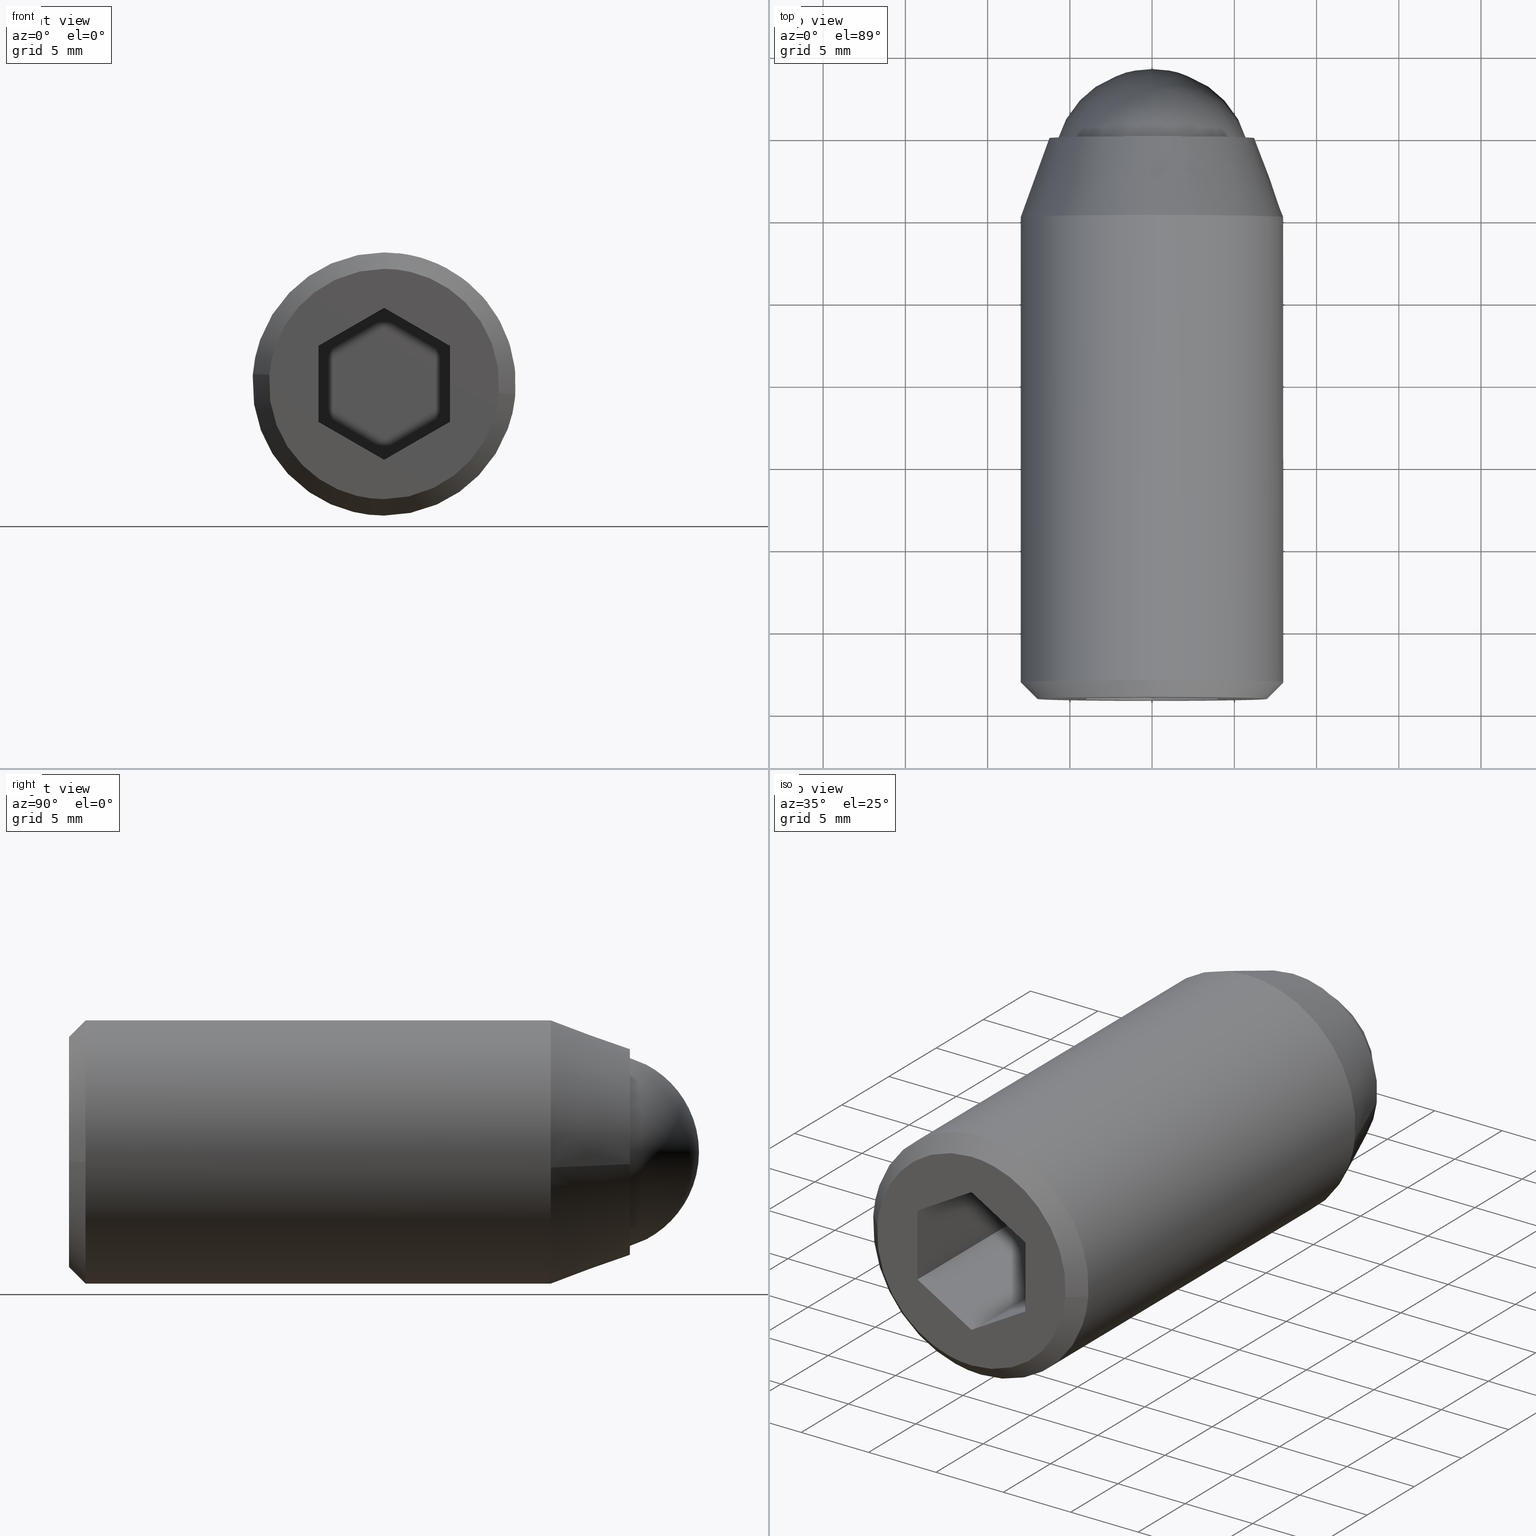
[diagram: canonical four-view strip — front | top / right | iso, engineering-drawing reading convention]
A machine part, canonical four-view strip (front | top / right | iso — engineering-drawing reading convention). The complete STEP part file that produces these views, byte-faithful:
ISO-10303-21;
HEADER;
/****************************************************************
 * Generated by software with PDE/Lib inside                    *
 * PDElib Version 4.4.1-0003, patched  Thursday August 19 11:58 *
 * International Technegroup Inc. (www.iti-oh.com)              *
 ****************************************************************/
FILE_DESCRIPTION((''),'2;1');
FILE_NAME('','2005-07-15T11:47:50',(''),(''),'','CADfix','');
FILE_SCHEMA(('AUTOMOTIVE_DESIGN'));
ENDSEC;
DATA;
#5=APPLICATION_CONTEXT('automotive design');
#6=APPLICATION_PROTOCOL_DEFINITION('Draft International Standard','automotive_design',1998,#5);
#7=PRODUCT_CONTEXT('None',#5,'mechanical');
#8=PRODUCT('body','','None',(#7));
#9=PRODUCT_RELATED_PRODUCT_CATEGORY('part','description',(#8));
#10=PRODUCT_DEFINITION_FORMATION('None','None',#8);
#11=PRODUCT_DEFINITION_CONTEXT('part definition',#5,'design');
#12=PRODUCT_DEFINITION('None','None',#10,#11);
#18=(NAMED_UNIT(*)PLANE_ANGLE_UNIT()SI_UNIT($,.RADIAN.));
#19=DIMENSIONAL_EXPONENTS(0.0,0.0,0.0,0.0,0.0,0.0,0.0);
#20=PLANE_ANGLE_MEASURE_WITH_UNIT(PLANE_ANGLE_MEASURE(0.017453292500000),#18);
#24=(CONVERSION_BASED_UNIT('DEGREE',#20)NAMED_UNIT(#19)PLANE_ANGLE_UNIT());
#28=(NAMED_UNIT(*)SI_UNIT($,.STERADIAN.)SOLID_ANGLE_UNIT());
#32=(LENGTH_UNIT()NAMED_UNIT(*)SI_UNIT(.MILLI.,.METRE.));
#34=UNCERTAINTY_MEASURE_WITH_UNIT(LENGTH_MEASURE(0.001000000000000),#32,'DISTANCE_ACCURACY_VALUE','');
#36=(GEOMETRIC_REPRESENTATION_CONTEXT(3)GLOBAL_UNCERTAINTY_ASSIGNED_CONTEXT((#34))GLOBAL_UNIT_ASSIGNED_CONTEXT((#24,#28,#32))REPRESENTATION_CONTEXT('None','None'));
#37=AXIS2_PLACEMENT_3D('',#38,#39,#40);
#38=CARTESIAN_POINT('',(0.0,0.0,0.0));
#39=DIRECTION('',(0.0,0.0,1.0));
#40=DIRECTION('',(1.0,0.0,0.0));
#41=ADVANCED_BREP_SHAPE_REPRESENTATION('',(#37,#949,#1160),#36);
#42=PRODUCT_DEFINITION_SHAPE('','',#12);
#43=SHAPE_DEFINITION_REPRESENTATION(#42,#41);
#44=CARTESIAN_POINT('',(-5.947547422012021,0.225000000000000,0.796622706249845));
#45=CARTESIAN_POINT('',(-5.952817106755494,0.225000000000000,0.752289406115208));
#46=CARTESIAN_POINT('',(-5.978325692691634,0.225000000000000,0.537688371827866));
#47=CARTESIAN_POINT('',(-5.988808790531200,0.225000000000000,0.366291237209142));
#48=CARTESIAN_POINT('',(-6.355100027740342,0.225000000000000,-5.622517553322059));
#49=CARTESIAN_POINT('',(-0.366291237209142,0.225000000000000,-5.988808790531200));
#50=CARTESIAN_POINT('',(5.622517553322059,0.225000000000000,-6.355100027740342));
#51=CARTESIAN_POINT('',(5.991443065238739,0.225000000000000,-0.323221226456473));
#52=CARTESIAN_POINT('',(5.994061691972859,0.225000000000000,-0.280407057807852));
#53=CARTESIAN_POINT('',(-5.947547422012021,-9.230625000000003,0.796622706249845));
#54=CARTESIAN_POINT('',(-5.952817106755494,-9.230625000000005,0.752289406115208));
#55=CARTESIAN_POINT('',(-5.978325692691634,-9.230625000000005,0.537688371827866));
#56=CARTESIAN_POINT('',(-5.988808790531200,-9.230625000000003,0.366291237209142));
#57=CARTESIAN_POINT('',(-6.355100027740342,-9.230625000000003,-5.622517553322059));
#58=CARTESIAN_POINT('',(-0.366291237209142,-9.230625000000003,-5.988808790531200));
#59=CARTESIAN_POINT('',(5.622517553322059,-9.230625000000003,-6.355100027740342));
#60=CARTESIAN_POINT('',(5.991443065238739,-9.230624999999998,-0.323221226456473));
#61=CARTESIAN_POINT('',(5.994061691972859,-9.230625000000003,-0.280407057807852));
#69=(BOUNDED_SURFACE()B_SPLINE_SURFACE(2,1,((#44,#53),(#45,#54),(#46,#55),(#47,#56),(#48,#57),(#49,#58),(#50,#59),(#51,#60),(#52,#61)),.UNSPECIFIED.,.F.,.F.,.U.)B_SPLINE_SURFACE_WITH_KNOTS((3,1,2,2,1,3),(2,2),(0.0,0.101396599785447,0.499041619663618,10.440167116617900,20.381292613572182,20.482702605112038),(0.0,9.455625000000007),.UNSPECIFIED.)GEOMETRIC_REPRESENTATION_ITEM()RATIONAL_B_SPLINE_SURFACE(((0.972008937008981,0.972008937008981),(0.974757368902054,0.974757368902054),(0.988284271247462,0.988284271247462),(1.0,1.0),(0.707106781186548,0.707106781186548),(1.0,1.0),(0.707106781186548,0.707106781186548),(1.002987820529080,1.002987820529080),(1.005975641058159,1.005975641058159)))REPRESENTATION_ITEM('')SURFACE());
#70=CARTESIAN_POINT('',(-5.958057462464865,-9.000000000000009,0.708202848031607));
#71=VERTEX_POINT('',#70);
#72=CARTESIAN_POINT('',(0.0,-9.0,-6.0));
#73=VERTEX_POINT('',#72);
#74=CARTESIAN_POINT('',(-5.958057462464865,-9.000000000000009,0.708202848031607));
#75=CARTESIAN_POINT('',(-6.0,-9.0,0.355343424425556));
#76=CARTESIAN_POINT('',(-6.0,-9.0,0.0));
#77=CARTESIAN_POINT('',(-6.0,-9.000000000000002,-6.0));
#78=CARTESIAN_POINT('',(0.0,-9.0,-6.0));
#86=(BOUNDED_CURVE()B_SPLINE_CURVE(2,(#74,#75,#76,#77,#78),.UNSPECIFIED.,.F.,.U.)B_SPLINE_CURVE_WITH_KNOTS((3,2,3),(0.229562546128734,0.250000000000000,0.500000000000000),.UNSPECIFIED.)CURVE()GEOMETRIC_REPRESENTATION_ITEM()RATIONAL_B_SPLINE_CURVE((0.956026896512564,0.976056033405174,1.0,0.707106781186548,1.0))REPRESENTATION_ITEM(''));
#87=EDGE_CURVE('',#71,#73,#86,.T.);
#88=ORIENTED_EDGE('',*,*,#87,.T.);
#89=CARTESIAN_POINT('',(5.988809336399950,-9.000000000000052,-0.366282312115718));
#90=VERTEX_POINT('',#89);
#91=CARTESIAN_POINT('',(0.0,-9.0,-6.0));
#92=CARTESIAN_POINT('',(5.644244828736739,-9.000000000000002,-6.000000000000001));
#93=CARTESIAN_POINT('',(5.988809336399950,-9.000000000000052,-0.366282312115718));
#101=(BOUNDED_CURVE()B_SPLINE_CURVE(2,(#91,#92,#93),.UNSPECIFIED.,.F.,.U.)B_SPLINE_CURVE_WITH_KNOTS((3,3),(0.500000000000000,0.739333219387683),.UNSPECIFIED.)CURVE()GEOMETRIC_REPRESENTATION_ITEM()RATIONAL_B_SPLINE_CURVE((1.0,0.719603692018222,0.976072592786037))REPRESENTATION_ITEM(''));
#102=EDGE_CURVE('',#73,#90,#101,.T.);
#103=ORIENTED_EDGE('',*,*,#102,.T.);
#104=CARTESIAN_POINT('',(5.988809329659173,-2.220446E-016,-0.366282422331791));
#105=VERTEX_POINT('',#104);
#106=CARTESIAN_POINT('',(5.988809329659173,-2.220446E-016,-0.366282422331791));
#107=CARTESIAN_POINT('',(5.988809336399950,-9.000000000000052,-0.366282312115718));
#108=QUASI_UNIFORM_CURVE('',1,(#106,#107),.UNSPECIFIED.,.F.,.U.);
#109=EDGE_CURVE('',#105,#90,#108,.T.);
#110=ORIENTED_EDGE('',*,*,#109,.F.);
#111=CARTESIAN_POINT('',(0.0,0.0,-6.0));
#112=VERTEX_POINT('',#111);
#113=CARTESIAN_POINT('',(0.0,0.0,-6.0));
#114=CARTESIAN_POINT('',(5.644244724667827,0.0,-6.0));
#115=CARTESIAN_POINT('',(5.988809329659173,-2.220446E-016,-0.366282422331791));
#123=(BOUNDED_CURVE()B_SPLINE_CURVE(2,(#113,#114,#115),.UNSPECIFIED.,.F.,.U.)B_SPLINE_CURVE_WITH_KNOTS((3,3),(0.500000000000000,0.739333216212187),.UNSPECIFIED.)CURVE()GEOMETRIC_REPRESENTATION_ITEM()RATIONAL_B_SPLINE_CURVE((1.0,0.719603695738547,0.976072585980330))REPRESENTATION_ITEM(''));
#124=EDGE_CURVE('',#112,#105,#123,.T.);
#125=ORIENTED_EDGE('',*,*,#124,.F.);
#126=CARTESIAN_POINT('',(-5.958057458705271,-2.271543E-016,0.708202879660905));
#127=VERTEX_POINT('',#126);
#128=CARTESIAN_POINT('',(-5.958057458705271,-2.271543E-016,0.708202879660905));
#129=CARTESIAN_POINT('',(-6.0,0.0,0.355343440407393));
#130=CARTESIAN_POINT('',(-6.0,0.0,0.0));
#131=CARTESIAN_POINT('',(-6.0,0.0,-6.0));
#132=CARTESIAN_POINT('',(0.0,0.0,-6.0));
#140=(BOUNDED_CURVE()B_SPLINE_CURVE(2,(#128,#129,#130,#131,#132),.UNSPECIFIED.,.F.,.U.)B_SPLINE_CURVE_WITH_KNOTS((3,2,3),(0.229562545231554,0.250000000000000,0.500000000000000),.UNSPECIFIED.)CURVE()GEOMETRIC_REPRESENTATION_ITEM()RATIONAL_B_SPLINE_CURVE((0.956026894754051,0.976056032354062,1.0,0.707106781186548,1.0))REPRESENTATION_ITEM(''));
#141=EDGE_CURVE('',#127,#112,#140,.T.);
#142=ORIENTED_EDGE('',*,*,#141,.F.);
#143=CARTESIAN_POINT('',(-5.958057458705271,-2.271543E-016,0.708202879660905));
#144=CARTESIAN_POINT('',(-5.958057462464865,-9.000000000000009,0.708202848031607));
#145=QUASI_UNIFORM_CURVE('',1,(#143,#144),.UNSPECIFIED.,.F.,.U.);
#146=EDGE_CURVE('',#127,#71,#145,.T.);
#147=ORIENTED_EDGE('',*,*,#146,.T.);
#148=EDGE_LOOP('',(#88,#103,#110,#125,#142,#147));
#149=FACE_OUTER_BOUND('',#148,.T.);
#150=ADVANCED_FACE('',(#149),#69,.F.);
#151=CARTESIAN_POINT('',(5.988808790531200,0.225000000000000,-0.366291237209142));
#152=CARTESIAN_POINT('',(6.355100027740342,0.225000000000000,5.622517553322059));
#153=CARTESIAN_POINT('',(0.366291237209142,0.225000000000000,5.988808790531200));
#154=CARTESIAN_POINT('',(-5.289260945037006,0.225000000000000,6.334717180395164));
#155=CARTESIAN_POINT('',(-5.958057158181998,0.225000000000000,0.708205407940551));
#156=CARTESIAN_POINT('',(5.988808790531200,-9.230625000000003,-0.366291237209142));
#157=CARTESIAN_POINT('',(6.355100027740342,-9.230625000000003,5.622517553322059));
#158=CARTESIAN_POINT('',(0.366291237209142,-9.230625000000003,5.988808790531200));
#159=CARTESIAN_POINT('',(-5.289260945037006,-9.230625000000003,6.334717180395164));
#160=CARTESIAN_POINT('',(-5.958057158181998,-9.230625000000003,0.708205407940551));
#168=(BOUNDED_SURFACE()B_SPLINE_SURFACE(2,1,((#151,#156),(#152,#157),(#153,#158),(#154,#159),(#155,#160)),.UNSPECIFIED.,.F.,.F.,.U.)B_SPLINE_SURFACE_WITH_KNOTS((3,2,3),(2,2),(0.0,9.941125496954278,19.484605974030391),(0.0,9.455625000000005),.UNSPECIFIED.)GEOMETRIC_REPRESENTATION_ITEM()RATIONAL_B_SPLINE_SURFACE(((1.0,1.0),(0.707106781186548,0.707106781186548),(1.0,1.0),(0.718822509939086,0.718822509939086),(0.977505800795127,0.977505800795127)))REPRESENTATION_ITEM('')SURFACE());
#169=CARTESIAN_POINT('',(0.0,-9.0,6.0));
#170=VERTEX_POINT('',#169);
#171=CARTESIAN_POINT('',(0.0,-9.0,6.0));
#172=CARTESIAN_POINT('',(-5.329049461478616,-9.0,6.000000000000001));
#173=CARTESIAN_POINT('',(-5.958057462464865,-9.000000000000009,0.708202848031607));
#181=(BOUNDED_CURVE()B_SPLINE_CURVE(2,(#171,#172,#173),.UNSPECIFIED.,.F.,.U.)B_SPLINE_CURVE_WITH_KNOTS((3,3),(0.0,0.229562546128734),.UNSPECIFIED.)CURVE()GEOMETRIC_REPRESENTATION_ITEM()RATIONAL_B_SPLINE_CURVE((1.0,0.731050747781373,0.956026896512564))REPRESENTATION_ITEM(''));
#182=EDGE_CURVE('',#170,#71,#181,.T.);
#183=ORIENTED_EDGE('',*,*,#182,.T.);
#184=ORIENTED_EDGE('',*,*,#146,.F.);
#185=CARTESIAN_POINT('',(0.0,0.0,6.0));
#186=VERTEX_POINT('',#185);
#187=CARTESIAN_POINT('',(0.0,0.0,6.0));
#188=CARTESIAN_POINT('',(-5.329049432989357,0.0,6.0));
#189=CARTESIAN_POINT('',(-5.958057458705271,-2.271543E-016,0.708202879660905));
#197=(BOUNDED_CURVE()B_SPLINE_CURVE(2,(#187,#188,#189),.UNSPECIFIED.,.F.,.U.)B_SPLINE_CURVE_WITH_KNOTS((3,3),(0.0,0.229562545231554),.UNSPECIFIED.)CURVE()GEOMETRIC_REPRESENTATION_ITEM()RATIONAL_B_SPLINE_CURVE((1.0,0.731050748832486,0.956026894754051))REPRESENTATION_ITEM(''));
#198=EDGE_CURVE('',#186,#127,#197,.T.);
#199=ORIENTED_EDGE('',*,*,#198,.F.);
#200=CARTESIAN_POINT('',(5.988809329659173,-2.220446E-016,-0.366282422331791));
#201=CARTESIAN_POINT('',(6.0,0.0,-0.183312159995326));
#202=CARTESIAN_POINT('',(6.0,0.0,0.0));
#203=CARTESIAN_POINT('',(6.0,0.0,6.0));
#204=CARTESIAN_POINT('',(0.0,0.0,6.0));
#212=(BOUNDED_CURVE()B_SPLINE_CURVE(2,(#200,#201,#202,#203,#204),.UNSPECIFIED.,.F.,.U.)B_SPLINE_CURVE_WITH_KNOTS((3,2,3),(0.739333216212187,0.750000000000000,1.0),.UNSPECIFIED.)CURVE()GEOMETRIC_REPRESENTATION_ITEM()RATIONAL_B_SPLINE_CURVE((0.976072585980330,0.987503085448001,1.0,0.707106781186548,1.0))REPRESENTATION_ITEM(''));
#213=EDGE_CURVE('',#105,#186,#212,.T.);
#214=ORIENTED_EDGE('',*,*,#213,.F.);
#215=ORIENTED_EDGE('',*,*,#109,.T.);
#216=CARTESIAN_POINT('',(5.988809336399950,-9.000000000000052,-0.366282312115718));
#217=CARTESIAN_POINT('',(6.0,-9.0,-0.183312104732784));
#218=CARTESIAN_POINT('',(6.0,-9.0,0.0));
#219=CARTESIAN_POINT('',(6.0,-9.000000000000002,6.0));
#220=CARTESIAN_POINT('',(0.0,-9.0,6.0));
#228=(BOUNDED_CURVE()B_SPLINE_CURVE(2,(#216,#217,#218,#219,#220),.UNSPECIFIED.,.F.,.U.)B_SPLINE_CURVE_WITH_KNOTS((3,2,3),(0.739333219387683,0.750000000000000,1.0),.UNSPECIFIED.)CURVE()GEOMETRIC_REPRESENTATION_ITEM()RATIONAL_B_SPLINE_CURVE((0.976072592786037,0.987503089168326,1.0,0.707106781186548,1.0))REPRESENTATION_ITEM(''));
#229=EDGE_CURVE('',#90,#170,#228,.T.);
#230=ORIENTED_EDGE('',*,*,#229,.T.);
#231=EDGE_LOOP('',(#183,#184,#199,#214,#215,#230));
#232=FACE_OUTER_BOUND('',#231,.T.);
#233=ADVANCED_FACE('',(#232),#168,.F.);
#234=CARTESIAN_POINT('',(-1.874588911880106,-4.100788149999998,-7.777269212998617));
#235=CARTESIAN_POINT('',(-1.190626377330084,-4.100788149999999,-7.942127667591645));
#236=CARTESIAN_POINT('',(-0.488388316278856,-4.100788149999998,-7.985078387374935));
#237=CARTESIAN_POINT('',(7.496690071096078,-4.100788149999999,-8.473466703653791));
#238=CARTESIAN_POINT('',(7.985078387374934,-4.100788149999998,-0.488388316278857));
#239=CARTESIAN_POINT('',(8.473466703653790,-4.100788149999999,7.496690071096077));
#240=CARTESIAN_POINT('',(0.488388316278856,-4.100788149999998,7.985078387374933));
#241=CARTESIAN_POINT('',(-7.496690071096078,-4.100788149999999,8.473466703653788));
#242=CARTESIAN_POINT('',(-7.985078387374934,-4.100788149999998,0.488388316278855));
#243=CARTESIAN_POINT('',(-1.874588911880106,-33.824980296249990,-7.777269212998617));
#244=CARTESIAN_POINT('',(-1.190626377330084,-33.824980296249990,-7.942127667591645));
#245=CARTESIAN_POINT('',(-0.488388316278856,-33.824980296249990,-7.985078387374935));
#246=CARTESIAN_POINT('',(7.496690071096078,-33.824980296249983,-8.473466703653791));
#247=CARTESIAN_POINT('',(7.985078387374934,-33.824980296249990,-0.488388316278857));
#248=CARTESIAN_POINT('',(8.473466703653790,-33.824980296249983,7.496690071096077));
#249=CARTESIAN_POINT('',(0.488388316278856,-33.824980296249990,7.985078387374933));
#250=CARTESIAN_POINT('',(-7.496690071096078,-33.824980296249983,8.473466703653788));
#251=CARTESIAN_POINT('',(-7.985078387374934,-33.824980296249990,0.488388316278855));
#259=(BOUNDED_SURFACE()B_SPLINE_SURFACE(2,1,((#234,#243),(#235,#244),(#236,#245),(#237,#246),(#238,#247),(#239,#248),(#240,#249),(#241,#250),(#242,#251)),.UNSPECIFIED.,.F.,.F.,.U.)B_SPLINE_SURFACE_WITH_KNOTS((3,2,2,2,3),(2,2),(0.0,1.590580079512685,14.845414075451730,28.100248071390769,41.355082067329803),(0.0,29.724192146249990),.UNSPECIFIED.)GEOMETRIC_REPRESENTATION_ITEM()RATIONAL_B_SPLINE_SURFACE(((0.938140952186599,0.938140952186599),(0.964852813742386,0.964852813742386),(1.0,1.0),(0.707106781186548,0.707106781186548),(1.0,1.0),(0.707106781186548,0.707106781186548),(1.0,1.0),(0.707106781186548,0.707106781186548),(1.0,1.0)))REPRESENTATION_ITEM('')SURFACE());
#260=CARTESIAN_POINT('',(-1.874588911887099,-33.099999999999987,-7.777269212996934));
#261=VERTEX_POINT('',#260);
#262=CARTESIAN_POINT('',(0.0,-33.099999999999987,-8.000000000000002));
#263=VERTEX_POINT('',#262);
#264=CARTESIAN_POINT('',(-1.874588911887098,-33.099999999999994,-7.777269212996934));
#265=CARTESIAN_POINT('',(-0.950526424610946,-33.099999999999994,-8.000000000000002));
#266=CARTESIAN_POINT('',(0.0,-33.099999999999987,-8.000000000000002));
#274=(BOUNDED_CURVE()B_SPLINE_CURVE(2,(#264,#265,#266),.UNSPECIFIED.,.F.,.U.)B_SPLINE_CURVE_WITH_KNOTS((3,3),(0.959962709885954,1.0),.UNSPECIFIED.)CURVE()GEOMETRIC_REPRESENTATION_ITEM()RATIONAL_B_SPLINE_CURVE((0.921210900018876,0.953093396903717,1.0))REPRESENTATION_ITEM(''));
#275=EDGE_CURVE('',#261,#263,#274,.T.);
#276=ORIENTED_EDGE('',*,*,#275,.F.);
#277=CARTESIAN_POINT('',(-1.874588911887099,-4.808085999999999,-7.777269212996934));
#278=VERTEX_POINT('',#277);
#279=CARTESIAN_POINT('',(-1.874588911887099,-4.808085999999999,-7.777269212996934));
#280=CARTESIAN_POINT('',(-1.874588911887099,-33.099999999999987,-7.777269212996934));
#281=QUASI_UNIFORM_CURVE('',1,(#279,#280),.UNSPECIFIED.,.F.,.U.);
#282=EDGE_CURVE('',#278,#261,#281,.T.);
#283=ORIENTED_EDGE('',*,*,#282,.F.);
#284=CARTESIAN_POINT('',(0.0,-4.808085999999999,-8.000000000000002));
#285=VERTEX_POINT('',#284);
#286=CARTESIAN_POINT('',(-1.874588911887098,-4.808085999999999,-7.777269212996934));
#287=CARTESIAN_POINT('',(-0.950526424610946,-4.808086000000000,-8.000000000000002));
#288=CARTESIAN_POINT('',(0.0,-4.808085999999999,-8.000000000000002));
#296=(BOUNDED_CURVE()B_SPLINE_CURVE(2,(#286,#287,#288),.UNSPECIFIED.,.F.,.U.)B_SPLINE_CURVE_WITH_KNOTS((3,3),(0.959962709885954,1.0),.UNSPECIFIED.)CURVE()GEOMETRIC_REPRESENTATION_ITEM()RATIONAL_B_SPLINE_CURVE((0.921210900018876,0.953093396903717,1.0))REPRESENTATION_ITEM(''));
#297=EDGE_CURVE('',#278,#285,#296,.T.);
#298=ORIENTED_EDGE('',*,*,#297,.T.);
#299=CARTESIAN_POINT('',(7.944075781646310,-4.808084164397428,-0.944271828332837));
#300=VERTEX_POINT('',#299);
#301=CARTESIAN_POINT('',(0.0,-4.808085999999999,-8.000000000000002));
#302=CARTESIAN_POINT('',(7.105397650375080,-4.808085082198716,-7.999999960570460));
#303=CARTESIAN_POINT('',(7.944075781646310,-4.808084164397428,-0.944271828332837));
#311=(BOUNDED_CURVE()B_SPLINE_CURVE(2,(#301,#302,#303),.UNSPECIFIED.,.F.,.U.)B_SPLINE_CURVE_WITH_KNOTS((3,3),(0.0,0.229562515426989),.UNSPECIFIED.)CURVE()GEOMETRIC_REPRESENTATION_ITEM()RATIONAL_B_SPLINE_CURVE((1.0,0.731050783750706,0.956026836335853))REPRESENTATION_ITEM(''));
#312=EDGE_CURVE('',#285,#300,#311,.T.);
#313=ORIENTED_EDGE('',*,*,#312,.T.);
#314=CARTESIAN_POINT('',(0.0,-4.808085999999999,7.999999999999998));
#315=VERTEX_POINT('',#314);
#316=CARTESIAN_POINT('',(7.944075781646310,-4.808084164397428,-0.944271828332837));
#317=CARTESIAN_POINT('',(7.999999354014221,-4.808084212674930,-0.473791884985567));
#318=CARTESIAN_POINT('',(7.999999373659843,-4.808084267030790,0.000000074449863));
#319=CARTESIAN_POINT('',(7.999999705377104,-4.808085184832076,8.000000035020323));
#320=CARTESIAN_POINT('',(0.0,-4.808085999999999,7.999999999999998));
#328=(BOUNDED_CURVE()B_SPLINE_CURVE(2,(#316,#317,#318,#319,#320),.UNSPECIFIED.,.F.,.U.)B_SPLINE_CURVE_WITH_KNOTS((3,2,3),(0.229562515426989,0.250000000000000,0.500000000000000),.UNSPECIFIED.)CURVE()GEOMETRIC_REPRESENTATION_ITEM()RATIONAL_B_SPLINE_CURVE((0.956026836335853,0.976055997435842,1.0,0.707106781186548,1.0))REPRESENTATION_ITEM(''));
#329=EDGE_CURVE('',#300,#315,#328,.T.);
#330=ORIENTED_EDGE('',*,*,#329,.T.);
#331=CARTESIAN_POINT('',(-7.985078387374985,-4.808086000002238,0.488388316288034));
#332=VERTEX_POINT('',#331);
#333=CARTESIAN_POINT('',(0.0,-4.808085999999999,7.999999999999998));
#334=CARTESIAN_POINT('',(-7.525648535222513,-4.808085999999999,7.999999999999999));
#335=CARTESIAN_POINT('',(-7.985078387374985,-4.808086000002238,0.488388316288034));
#343=(BOUNDED_CURVE()B_SPLINE_CURVE(2,(#333,#334,#335),.UNSPECIFIED.,.F.,.U.)B_SPLINE_CURVE_WITH_KNOTS((3,3),(0.500000000000000,0.739332962241441),.UNSPECIFIED.)CURVE()GEOMETRIC_REPRESENTATION_ITEM()RATIONAL_B_SPLINE_CURVE((1.0,0.719603993283784,0.976072041672071))REPRESENTATION_ITEM(''));
#344=EDGE_CURVE('',#315,#332,#343,.T.);
#345=ORIENTED_EDGE('',*,*,#344,.T.);
#346=CARTESIAN_POINT('',(-7.985078427888723,-33.099999999999987,0.488387653883368));
#347=VERTEX_POINT('',#346);
#348=CARTESIAN_POINT('',(-7.985078387374985,-4.808086000002238,0.488388316288034));
#349=CARTESIAN_POINT('',(-7.985078427888723,-33.099999999999987,0.488387653883368));
#350=QUASI_UNIFORM_CURVE('',1,(#348,#349),.UNSPECIFIED.,.F.,.U.);
#351=EDGE_CURVE('',#332,#347,#350,.T.);
#352=ORIENTED_EDGE('',*,*,#351,.T.);
#353=CARTESIAN_POINT('',(-7.975338585537228,-33.100000089765423,0.627672693204310));
#354=VERTEX_POINT('',#353);
#355=CARTESIAN_POINT('',(-7.975338585537228,-33.100000089765409,0.627672693204309));
#356=CARTESIAN_POINT('',(-7.980816343196216,-33.099999999999987,0.558072312365772));
#357=CARTESIAN_POINT('',(-7.985078427888723,-33.099999999999994,0.488387653883367));
#365=(BOUNDED_CURVE()B_SPLINE_CURVE(2,(#355,#356,#357),.UNSPECIFIED.,.F.,.U.)B_SPLINE_CURVE_WITH_KNOTS((3,3),(0.736331303451770,0.739332990868918),.UNSPECIFIED.)CURVE()GEOMETRIC_REPRESENTATION_ITEM()RATIONAL_B_SPLINE_CURVE((0.969723362054861,0.972855508457312,0.976072103026212))REPRESENTATION_ITEM(''));
#366=EDGE_CURVE('',#354,#347,#365,.T.);
#367=ORIENTED_EDGE('',*,*,#366,.F.);
#368=CARTESIAN_POINT('',(0.0,-33.099999999999987,7.999999999999998));
#369=VERTEX_POINT('',#368);
#370=CARTESIAN_POINT('',(0.0,-33.099999999999987,7.999999999999998));
#371=CARTESIAN_POINT('',(-7.395124055251427,-33.099999999999994,7.999999999999999));
#372=CARTESIAN_POINT('',(-7.975338585537228,-33.100000089765416,0.627672693204310));
#380=(BOUNDED_CURVE()B_SPLINE_CURVE(2,(#370,#371,#372),.UNSPECIFIED.,.F.,.U.)B_SPLINE_CURVE_WITH_KNOTS((3,3),(0.500000000000000,0.736331303451771),.UNSPECIFIED.)CURVE()GEOMETRIC_REPRESENTATION_ITEM()RATIONAL_B_SPLINE_CURVE((1.0,0.723120655302528,0.969723362054862))REPRESENTATION_ITEM(''));
#381=EDGE_CURVE('',#369,#354,#380,.T.);
#382=ORIENTED_EDGE('',*,*,#381,.F.);
#383=CARTESIAN_POINT('',(7.975338585537230,-33.100000089765409,-0.627672693204314));
#384=VERTEX_POINT('',#383);
#385=CARTESIAN_POINT('',(7.975338585537230,-33.100000089765409,-0.627672693204314));
#386=CARTESIAN_POINT('',(8.0,-33.099999999999994,-0.314320790181507));
#387=CARTESIAN_POINT('',(8.0,-33.099999999999987,-1.291960E-015));
#388=CARTESIAN_POINT('',(8.0,-33.099999999999994,7.999999999999999));
#389=CARTESIAN_POINT('',(0.0,-33.099999999999987,7.999999999999998));
#397=(BOUNDED_CURVE()B_SPLINE_CURVE(2,(#385,#386,#387,#388,#389),.UNSPECIFIED.,.F.,.U.)B_SPLINE_CURVE_WITH_KNOTS((3,2,3),(0.236331303451770,0.250000000000000,0.500000000000000),.UNSPECIFIED.)CURVE()GEOMETRIC_REPRESENTATION_ITEM()RATIONAL_B_SPLINE_CURVE((0.969723362054860,0.983986125884019,1.0,0.707106781186548,1.0))REPRESENTATION_ITEM(''));
#398=EDGE_CURVE('',#384,#369,#397,.T.);
#399=ORIENTED_EDGE('',*,*,#398,.F.);
#400=CARTESIAN_POINT('',(0.0,-33.099999999999987,-8.000000000000002));
#401=CARTESIAN_POINT('',(7.395124055251383,-33.099999999999980,-8.000000000000002));
#402=CARTESIAN_POINT('',(7.975338585537230,-33.100000089765409,-0.627672693204314));
#410=(BOUNDED_CURVE()B_SPLINE_CURVE(2,(#400,#401,#402),.UNSPECIFIED.,.F.,.U.)B_SPLINE_CURVE_WITH_KNOTS((3,3),(0.0,0.236331303451770),.UNSPECIFIED.)CURVE()GEOMETRIC_REPRESENTATION_ITEM()RATIONAL_B_SPLINE_CURVE((1.0,0.723120655302529,0.969723362054860))REPRESENTATION_ITEM(''));
#411=EDGE_CURVE('',#263,#384,#410,.T.);
#412=ORIENTED_EDGE('',*,*,#411,.F.);
#413=EDGE_LOOP('',(#276,#283,#298,#313,#330,#345,#352,#367,#382,#399,#412));
#414=FACE_OUTER_BOUND('',#413,.T.);
#415=ADVANCED_FACE('',(#414),#259,.T.);
#416=CARTESIAN_POINT('',(-7.985078387374934,-4.100788149999998,0.488388316278855));
#417=CARTESIAN_POINT('',(-8.394509095444208,-4.100788149999998,-6.205744588130942));
#418=CARTESIAN_POINT('',(-1.874588911880106,-4.100788149999998,-7.777269212998617));
#419=CARTESIAN_POINT('',(-7.985078387374934,-33.824980296249990,0.488388316278855));
#420=CARTESIAN_POINT('',(-8.394509095444208,-33.824980296249997,-6.205744588130942));
#421=CARTESIAN_POINT('',(-1.874588911880106,-33.824980296249990,-7.777269212998617));
#429=(BOUNDED_SURFACE()B_SPLINE_SURFACE(2,1,((#416,#419),(#417,#420),(#418,#421)),.UNSPECIFIED.,.F.,.F.,.U.)B_SPLINE_SURFACE_WITH_KNOTS((3,3),(2,2),(0.0,11.635506658838469),(0.0,29.724192146249990),.UNSPECIFIED.)GEOMETRIC_REPRESENTATION_ITEM()RATIONAL_B_SPLINE_SURFACE(((1.0,1.0),(0.742253967444162,0.742253967444162),(0.938140952186599,0.938140952186599)))REPRESENTATION_ITEM('')SURFACE());
#430=CARTESIAN_POINT('',(-7.985078427888724,-33.100000000000001,0.488387653883368));
#431=CARTESIAN_POINT('',(-8.0,-33.099999999999994,0.244421442135936));
#432=CARTESIAN_POINT('',(-8.0,-33.099999999999987,-1.291960E-015));
#433=CARTESIAN_POINT('',(-8.0,-33.100000000000001,-6.300834825540837));
#434=CARTESIAN_POINT('',(-1.874588911887099,-33.099999999999994,-7.777269212996934));
#442=(BOUNDED_CURVE()B_SPLINE_CURVE(2,(#430,#431,#432,#433,#434),.UNSPECIFIED.,.F.,.U.)B_SPLINE_CURVE_WITH_KNOTS((3,2,3),(0.739332990868918,0.750000000000000,0.959962709885954),.UNSPECIFIED.)CURVE()GEOMETRIC_REPRESENTATION_ITEM()RATIONAL_B_SPLINE_CURVE((0.976072103026212,0.987502821441939,1.0,0.754013384282832,0.921210900018875))REPRESENTATION_ITEM(''));
#443=EDGE_CURVE('',#347,#261,#442,.T.);
#444=ORIENTED_EDGE('',*,*,#443,.F.);
#445=ORIENTED_EDGE('',*,*,#351,.F.);
#446=CARTESIAN_POINT('',(-7.985078387374985,-4.808086000002238,0.488388316288034));
#447=CARTESIAN_POINT('',(-8.000000000000002,-4.808086000000000,0.244422106400933));
#448=CARTESIAN_POINT('',(-8.0,-4.808085999999999,-1.291960E-015));
#449=CARTESIAN_POINT('',(-8.0,-4.808085999999999,-6.300834825540911));
#450=CARTESIAN_POINT('',(-1.874588911887099,-4.808085999999999,-7.777269212996934));
#458=(BOUNDED_CURVE()B_SPLINE_CURVE(2,(#446,#447,#448,#449,#450),.UNSPECIFIED.,.F.,.U.)B_SPLINE_CURVE_WITH_KNOTS((3,2,3),(0.739332962241442,0.750000000000000,0.959962709885956),.UNSPECIFIED.)CURVE()GEOMETRIC_REPRESENTATION_ITEM()RATIONAL_B_SPLINE_CURVE((0.976072041672073,0.987502787902765,1.0,0.754013384282830,0.921210900018878))REPRESENTATION_ITEM(''));
#459=EDGE_CURVE('',#332,#278,#458,.T.);
#460=ORIENTED_EDGE('',*,*,#459,.T.);
#461=ORIENTED_EDGE('',*,*,#282,.T.);
#462=EDGE_LOOP('',(#444,#445,#460,#461));
#463=FACE_OUTER_BOUND('',#462,.T.);
#464=ADVANCED_FACE('',(#463),#429,.T.);
#465=CARTESIAN_POINT('',(6.953498402788556,-34.125000000000007,-0.547252192701723));
#466=CARTESIAN_POINT('',(6.406246210086835,-34.125000000000007,-7.500750595490278));
#467=CARTESIAN_POINT('',(-0.547252192701722,-34.125000000000007,-6.953498402788557));
#468=CARTESIAN_POINT('',(-7.500750595490278,-34.125000000000007,-6.406246210086835));
#469=CARTESIAN_POINT('',(-6.953498402788556,-34.125000000000007,0.547252192701721));
#470=CARTESIAN_POINT('',(8.000884676541931,-33.074374999999989,-0.629683280150792));
#471=CARTESIAN_POINT('',(7.371201396391141,-33.074374999999989,-8.630567956692723));
#472=CARTESIAN_POINT('',(-0.629683280150790,-33.074374999999989,-8.000884676541933));
#473=CARTESIAN_POINT('',(-8.630567956692721,-33.074374999999989,-7.371201396391142));
#474=CARTESIAN_POINT('',(-8.000884676541931,-33.074374999999989,0.629683280150789));
#482=(BOUNDED_SURFACE()B_SPLINE_SURFACE(2,1,((#465,#470),(#466,#471),(#467,#472),(#468,#473),(#469,#474)),.UNSPECIFIED.,.F.,.F.,.U.)B_SPLINE_SURFACE_WITH_KNOTS((3,2,3),(2,2),(0.0,13.297290886082280,26.594581772164549),(0.0,1.0),.UNSPECIFIED.)GEOMETRIC_REPRESENTATION_ITEM()RATIONAL_B_SPLINE_SURFACE(((1.0,1.0),(0.707106781186548,0.707106781186548),(1.0,1.0),(0.707106781186548,0.707106781186548),(1.0,1.0)))REPRESENTATION_ITEM('')SURFACE());
#483=ORIENTED_EDGE('',*,*,#411,.T.);
#484=CARTESIAN_POINT('',(6.978421336134765,-34.099999999992761,-0.549213670150708));
#485=VERTEX_POINT('',#484);
#486=CARTESIAN_POINT('',(6.978421336134765,-34.099999999992761,-0.549213670150708));
#487=CARTESIAN_POINT('',(7.975338585537230,-33.100000089765409,-0.627672693204314));
#488=QUASI_UNIFORM_CURVE('',1,(#486,#487),.UNSPECIFIED.,.F.,.U.);
#489=EDGE_CURVE('',#485,#384,#488,.T.);
#490=ORIENTED_EDGE('',*,*,#489,.F.);
#491=CARTESIAN_POINT('',(0.0,-34.100000000000001,-7.000000000000001));
#492=VERTEX_POINT('',#491);
#493=CARTESIAN_POINT('',(0.0,-34.100000000000001,-7.000000000000001));
#494=CARTESIAN_POINT('',(6.470733441504724,-34.100000000000009,-7.000000000000001));
#495=CARTESIAN_POINT('',(6.978421336134765,-34.099999999992761,-0.549213670150708));
#503=(BOUNDED_CURVE()B_SPLINE_CURVE(2,(#493,#494,#495),.UNSPECIFIED.,.F.,.U.)B_SPLINE_CURVE_WITH_KNOTS((3,3),(0.0,0.236331300630054),.UNSPECIFIED.)CURVE()GEOMETRIC_REPRESENTATION_ITEM()RATIONAL_B_SPLINE_CURVE((1.0,0.723120658608375,0.969723356166153))REPRESENTATION_ITEM(''));
#504=EDGE_CURVE('',#492,#485,#503,.T.);
#505=ORIENTED_EDGE('',*,*,#504,.F.);
#506=CARTESIAN_POINT('',(-6.978421336134765,-34.099999999992761,0.549213670150704));
#507=VERTEX_POINT('',#506);
#508=CARTESIAN_POINT('',(-6.978421336134765,-34.099999999992761,0.549213670150704));
#509=CARTESIAN_POINT('',(-7.0,-34.100000000000001,0.275030749109163));
#510=CARTESIAN_POINT('',(-7.0,-34.100000000000001,-1.291960E-015));
#511=CARTESIAN_POINT('',(-6.999999999999999,-34.100000000000001,-7.000000000000002));
#512=CARTESIAN_POINT('',(0.0,-34.100000000000001,-7.000000000000001));
#520=(BOUNDED_CURVE()B_SPLINE_CURVE(2,(#508,#509,#510,#511,#512),.UNSPECIFIED.,.F.,.U.)B_SPLINE_CURVE_WITH_KNOTS((3,2,3),(0.736331300630054,0.750000000000000,1.0),.UNSPECIFIED.)CURVE()GEOMETRIC_REPRESENTATION_ITEM()RATIONAL_B_SPLINE_CURVE((0.969723356166154,0.983986122578172,1.0,0.707106781186547,1.0))REPRESENTATION_ITEM(''));
#521=EDGE_CURVE('',#507,#492,#520,.T.);
#522=ORIENTED_EDGE('',*,*,#521,.F.);
#523=CARTESIAN_POINT('',(-6.978421336134765,-34.099999999992761,0.549213670150704));
#524=CARTESIAN_POINT('',(-7.975338585537228,-33.100000089765423,0.627672693204310));
#525=QUASI_UNIFORM_CURVE('',1,(#523,#524),.UNSPECIFIED.,.F.,.U.);
#526=EDGE_CURVE('',#507,#354,#525,.T.);
#527=ORIENTED_EDGE('',*,*,#526,.T.);
#528=ORIENTED_EDGE('',*,*,#366,.T.);
#529=ORIENTED_EDGE('',*,*,#443,.T.);
#530=ORIENTED_EDGE('',*,*,#275,.T.);
#531=EDGE_LOOP('',(#483,#490,#505,#522,#527,#528,#529,#530));
#532=FACE_OUTER_BOUND('',#531,.T.);
#533=ADVANCED_FACE('',(#532),#482,.T.);
#534=CARTESIAN_POINT('',(-6.953498402788556,-34.125000000000007,0.547252192701721));
#535=CARTESIAN_POINT('',(-6.406246210086835,-34.125000000000007,7.500750595490277));
#536=CARTESIAN_POINT('',(0.547252192701722,-34.125000000000007,6.953498402788555));
#537=CARTESIAN_POINT('',(7.500750595490278,-34.125000000000007,6.406246210086834));
#538=CARTESIAN_POINT('',(6.953498402788556,-34.125000000000007,-0.547252192701723));
#539=CARTESIAN_POINT('',(-8.000884676541931,-33.074374999999989,0.629683280150789));
#540=CARTESIAN_POINT('',(-7.371201396391141,-33.074374999999989,8.630567956692721));
#541=CARTESIAN_POINT('',(0.629683280150790,-33.074374999999989,8.000884676541929));
#542=CARTESIAN_POINT('',(8.630567956692721,-33.074374999999989,7.371201396391141));
#543=CARTESIAN_POINT('',(8.000884676541931,-33.074374999999989,-0.629683280150792));
#551=(BOUNDED_SURFACE()B_SPLINE_SURFACE(2,1,((#534,#539),(#535,#540),(#536,#541),(#537,#542),(#538,#543)),.UNSPECIFIED.,.F.,.F.,.U.)B_SPLINE_SURFACE_WITH_KNOTS((3,2,3),(2,2),(0.0,13.297290886082280,26.594581772164560),(0.0,1.0),.UNSPECIFIED.)GEOMETRIC_REPRESENTATION_ITEM()RATIONAL_B_SPLINE_SURFACE(((1.0,1.0),(0.707106781186548,0.707106781186548),(1.0,1.0),(0.707106781186548,0.707106781186548),(1.0,1.0)))REPRESENTATION_ITEM('')SURFACE());
#552=ORIENTED_EDGE('',*,*,#398,.T.);
#553=ORIENTED_EDGE('',*,*,#381,.T.);
#554=ORIENTED_EDGE('',*,*,#526,.F.);
#555=CARTESIAN_POINT('',(0.0,-34.100000000000001,6.999999999999999));
#556=VERTEX_POINT('',#555);
#557=CARTESIAN_POINT('',(0.0,-34.100000000000001,6.999999999999999));
#558=CARTESIAN_POINT('',(-6.470733441504764,-34.100000000000001,7.0));
#559=CARTESIAN_POINT('',(-6.978421336134765,-34.099999999992761,0.549213670150704));
#567=(BOUNDED_CURVE()B_SPLINE_CURVE(2,(#557,#558,#559),.UNSPECIFIED.,.F.,.U.)B_SPLINE_CURVE_WITH_KNOTS((3,3),(0.500000000000000,0.736331300630055),.UNSPECIFIED.)CURVE()GEOMETRIC_REPRESENTATION_ITEM()RATIONAL_B_SPLINE_CURVE((1.0,0.723120658608374,0.969723356166156))REPRESENTATION_ITEM(''));
#568=EDGE_CURVE('',#556,#507,#567,.T.);
#569=ORIENTED_EDGE('',*,*,#568,.F.);
#570=CARTESIAN_POINT('',(6.978421336134765,-34.099999999992761,-0.549213670150708));
#571=CARTESIAN_POINT('',(7.0,-34.100000000000001,-0.275030749109167));
#572=CARTESIAN_POINT('',(7.0,-34.100000000000001,-1.291960E-015));
#573=CARTESIAN_POINT('',(6.999999999999999,-34.100000000000001,6.999999999999999));
#574=CARTESIAN_POINT('',(0.0,-34.100000000000001,6.999999999999999));
#582=(BOUNDED_CURVE()B_SPLINE_CURVE(2,(#570,#571,#572,#573,#574),.UNSPECIFIED.,.F.,.U.)B_SPLINE_CURVE_WITH_KNOTS((3,2,3),(0.236331300630054,0.250000000000000,0.500000000000000),.UNSPECIFIED.)CURVE()GEOMETRIC_REPRESENTATION_ITEM()RATIONAL_B_SPLINE_CURVE((0.969723356166153,0.983986122578172,1.0,0.707106781186547,1.0))REPRESENTATION_ITEM(''));
#583=EDGE_CURVE('',#485,#556,#582,.T.);
#584=ORIENTED_EDGE('',*,*,#583,.F.);
#585=ORIENTED_EDGE('',*,*,#489,.T.);
#586=EDGE_LOOP('',(#552,#553,#554,#569,#584,#585));
#587=FACE_OUTER_BOUND('',#586,.T.);
#588=ADVANCED_FACE('',(#587),#551,.T.);
#589=CARTESIAN_POINT('',(6.162865372994504,0.120202150000000,-0.732549968838508));
#590=CARTESIAN_POINT('',(6.183830638377908,0.120202150000000,-0.556171409609450));
#591=CARTESIAN_POINT('',(6.194674092705709,0.120202150000000,-0.378882498488207));
#592=CARTESIAN_POINT('',(6.573556591193915,0.120202150000000,5.815791594217502));
#593=CARTESIAN_POINT('',(0.378882498488206,0.120202150000000,6.194674092705708));
#594=CARTESIAN_POINT('',(-5.815791594217503,0.120202150000000,6.573556591193914));
#595=CARTESIAN_POINT('',(-6.194674092705709,0.120202150000000,0.378882498488205));
#596=CARTESIAN_POINT('',(7.988606481857201,-4.931293203750001,-0.949566974964458));
#597=CARTESIAN_POINT('',(8.015782680719118,-4.931293203750000,-0.720936489591182));
#598=CARTESIAN_POINT('',(8.029838494741664,-4.931293203750000,-0.491125961723623));
#599=CARTESIAN_POINT('',(8.520964456465288,-4.931293203750001,7.538712533018041));
#600=CARTESIAN_POINT('',(0.491125961723622,-4.931293203750000,8.029838494741663));
#601=CARTESIAN_POINT('',(-7.538712533018043,-4.931293203750001,8.520964456465284));
#602=CARTESIAN_POINT('',(-8.029838494741664,-4.931293203750000,0.491125961723621));
#610=(BOUNDED_SURFACE()B_SPLINE_SURFACE(2,1,((#589,#596),(#590,#597),(#591,#598),(#592,#599),(#593,#600),(#594,#601),(#595,#602)),.UNSPECIFIED.,.F.,.F.,.U.)B_SPLINE_SURFACE_WITH_KNOTS((3,2,2,3),(2,2),(0.0,0.533165342147589,13.862298895837300,27.191432449527010),(0.0,5.375689005745860),.UNSPECIFIED.)GEOMETRIC_REPRESENTATION_ITEM()RATIONAL_B_SPLINE_SURFACE(((0.977505800795127,0.977505800795127),(0.988284271247462,0.988284271247462),(1.0,1.0),(0.707106781186548,0.707106781186548),(1.0,1.0),(0.707106781186548,0.707106781186548),(1.0,1.0)))REPRESENTATION_ITEM('')SURFACE());
#611=CARTESIAN_POINT('',(6.206309539772297,-2.303983E-012,-0.737713966617037));
#612=VERTEX_POINT('',#611);
#613=CARTESIAN_POINT('',(0.0,0.0,6.249999999999999));
#614=VERTEX_POINT('',#613);
#615=CARTESIAN_POINT('',(6.206309539772297,-2.303983E-012,-0.737713966617037));
#616=CARTESIAN_POINT('',(6.250000000000000,0.0,-0.370150747836765));
#617=CARTESIAN_POINT('',(6.250000000000000,0.0,-1.291960E-015));
#618=CARTESIAN_POINT('',(6.249999999999999,0.0,6.249999999999999));
#619=CARTESIAN_POINT('',(0.0,0.0,6.249999999999999));
#627=(BOUNDED_CURVE()B_SPLINE_CURVE(2,(#615,#616,#617,#618,#619),.UNSPECIFIED.,.F.,.U.)B_SPLINE_CURVE_WITH_KNOTS((3,2,3),(0.229562473514980,0.250000000000000,0.500000000000000),.UNSPECIFIED.)CURVE()GEOMETRIC_REPRESENTATION_ITEM()RATIONAL_B_SPLINE_CURVE((0.956026754186584,0.976055948332869,1.0,0.707106781186547,1.0))REPRESENTATION_ITEM(''));
#628=EDGE_CURVE('',#612,#614,#627,.T.);
#629=ORIENTED_EDGE('',*,*,#628,.T.);
#630=CARTESIAN_POINT('',(-6.238341227741394,0.000004335775099,0.381548162198238));
#631=VERTEX_POINT('',#630);
#632=CARTESIAN_POINT('',(0.0,0.0,6.249999999999999));
#633=CARTESIAN_POINT('',(-5.879416958934103,0.000002167887550,6.249999951830448));
#634=CARTESIAN_POINT('',(-6.238341227741394,0.000004335775099,0.381548162198238));
#642=(BOUNDED_CURVE()B_SPLINE_CURVE(2,(#632,#633,#634),.UNSPECIFIED.,.F.,.U.)B_SPLINE_CURVE_WITH_KNOTS((3,3),(0.500000000000000,0.739333103678208),.UNSPECIFIED.)CURVE()GEOMETRIC_REPRESENTATION_ITEM()RATIONAL_B_SPLINE_CURVE((1.0,0.719603827580304,0.976072344798174))REPRESENTATION_ITEM(''));
#643=EDGE_CURVE('',#614,#631,#642,.T.);
#644=ORIENTED_EDGE('',*,*,#643,.T.);
#645=CARTESIAN_POINT('',(-6.238341227741394,0.000004335775099,0.381548162198238));
#646=CARTESIAN_POINT('',(-7.985078387374985,-4.808086000002238,0.488388316288034));
#647=QUASI_UNIFORM_CURVE('',1,(#645,#646),.UNSPECIFIED.,.F.,.U.);
#648=EDGE_CURVE('',#631,#332,#647,.T.);
#649=ORIENTED_EDGE('',*,*,#648,.T.);
#650=ORIENTED_EDGE('',*,*,#344,.F.);
#651=ORIENTED_EDGE('',*,*,#329,.F.);
#652=CARTESIAN_POINT('',(6.206309539772297,-2.303983E-012,-0.737713966617037));
#653=CARTESIAN_POINT('',(7.944075781646310,-4.808084164397428,-0.944271828332837));
#654=QUASI_UNIFORM_CURVE('',1,(#652,#653),.UNSPECIFIED.,.F.,.U.);
#655=EDGE_CURVE('',#612,#300,#654,.T.);
#656=ORIENTED_EDGE('',*,*,#655,.F.);
#657=EDGE_LOOP('',(#629,#644,#649,#650,#651,#656));
#658=FACE_OUTER_BOUND('',#657,.T.);
#659=ADVANCED_FACE('',(#658),#610,.T.);
#660=CARTESIAN_POINT('',(-6.194674092705709,0.120202150000000,0.378882498488205));
#661=CARTESIAN_POINT('',(-6.573556591193915,0.120202150000000,-5.815791594217505));
#662=CARTESIAN_POINT('',(-0.378882498488206,0.120202150000000,-6.194674092705710));
#663=CARTESIAN_POINT('',(5.471079290022653,0.120202150000000,-6.552473083471249));
#664=CARTESIAN_POINT('',(6.162865372994504,0.120202150000000,-0.732549968838508));
#665=CARTESIAN_POINT('',(-8.029838494741664,-4.931293203750000,0.491125961723621));
#666=CARTESIAN_POINT('',(-8.520964456465288,-4.931293203750001,-7.538712533018043));
#667=CARTESIAN_POINT('',(-0.491125961723622,-4.931293203750000,-8.029838494741666));
#668=CARTESIAN_POINT('',(7.091879642633341,-4.931293203750000,-8.493634986119945));
#669=CARTESIAN_POINT('',(7.988606481857201,-4.931293203750001,-0.949566974964458));
#677=(BOUNDED_SURFACE()B_SPLINE_SURFACE(2,1,((#660,#665),(#661,#666),(#662,#667),(#663,#668),(#664,#669)),.UNSPECIFIED.,.F.,.F.,.U.)B_SPLINE_SURFACE_WITH_KNOTS((3,2,3),(2,2),(0.0,13.329133553689720,26.125101765231840),(0.0,5.375689005745859),.UNSPECIFIED.)GEOMETRIC_REPRESENTATION_ITEM()RATIONAL_B_SPLINE_SURFACE(((1.0,1.0),(0.707106781186548,0.707106781186548),(1.0,1.0),(0.718822509939086,0.718822509939086),(0.977505800795127,0.977505800795127)))REPRESENTATION_ITEM('')SURFACE());
#678=CARTESIAN_POINT('',(0.0,0.0,-6.250000000000001));
#679=VERTEX_POINT('',#678);
#680=CARTESIAN_POINT('',(0.0,0.0,-6.250000000000001));
#681=CARTESIAN_POINT('',(5.551090787174074,0.0,-6.250000000000002));
#682=CARTESIAN_POINT('',(6.206309539772298,-2.303983E-012,-0.737713966617037));
#690=(BOUNDED_CURVE()B_SPLINE_CURVE(2,(#680,#681,#682),.UNSPECIFIED.,.F.,.U.)B_SPLINE_CURVE_WITH_KNOTS((3,3),(0.0,0.229562473514980),.UNSPECIFIED.)CURVE()GEOMETRIC_REPRESENTATION_ITEM()RATIONAL_B_SPLINE_CURVE((1.0,0.731050832853678,0.956026754186584))REPRESENTATION_ITEM(''));
#691=EDGE_CURVE('',#679,#612,#690,.T.);
#692=ORIENTED_EDGE('',*,*,#691,.T.);
#693=ORIENTED_EDGE('',*,*,#655,.T.);
#694=ORIENTED_EDGE('',*,*,#312,.F.);
#695=ORIENTED_EDGE('',*,*,#297,.F.);
#696=ORIENTED_EDGE('',*,*,#459,.F.);
#697=ORIENTED_EDGE('',*,*,#648,.F.);
#698=CARTESIAN_POINT('',(-6.238341227741394,0.000004335775099,0.381548162198238));
#699=CARTESIAN_POINT('',(-6.249998447483940,0.000004273468261,0.190952111714892));
#700=CARTESIAN_POINT('',(-6.249998471546235,0.000004207234195,-0.000000093482978));
#701=CARTESIAN_POINT('',(-6.249999259122045,0.000002039346645,-6.250000045313428));
#702=CARTESIAN_POINT('',(0.0,0.0,-6.250000000000001));
#710=(BOUNDED_CURVE()B_SPLINE_CURVE(2,(#698,#699,#700,#701,#702),.UNSPECIFIED.,.F.,.U.)B_SPLINE_CURVE_WITH_KNOTS((3,2,3),(0.739333103678208,0.750000000000000,1.0),.UNSPECIFIED.)CURVE()GEOMETRIC_REPRESENTATION_ITEM()RATIONAL_B_SPLINE_CURVE((0.976072344798174,0.987502953606244,1.0,0.707106781186547,1.0))REPRESENTATION_ITEM(''));
#711=EDGE_CURVE('',#631,#679,#710,.T.);
#712=ORIENTED_EDGE('',*,*,#711,.T.);
#713=EDGE_LOOP('',(#692,#693,#694,#695,#696,#697,#712));
#714=FACE_OUTER_BOUND('',#713,.T.);
#715=ADVANCED_FACE('',(#714),#677,.T.);
#716=CARTESIAN_POINT('',(-6.599291187213043,-9.0,6.599399976741672));
#717=CARTESIAN_POINT('',(6.599253958151916,-9.0,6.599399976741672));
#718=CARTESIAN_POINT('',(-6.599291187213044,-9.0,-6.599400298606753));
#719=CARTESIAN_POINT('',(6.599253958151916,-9.0,-6.599400298606753));
#720=B_SPLINE_SURFACE_WITH_KNOTS('',1,1,((#716,#718),(#717,#719)),.UNSPECIFIED.,.F.,.F.,.U.,(2,2),(2,2),(0.0,13.198545145364960),(0.0,13.198800275348431),.UNSPECIFIED.);
#721=ORIENTED_EDGE('',*,*,#229,.F.);
#722=ORIENTED_EDGE('',*,*,#102,.F.);
#723=ORIENTED_EDGE('',*,*,#87,.F.);
#724=ORIENTED_EDGE('',*,*,#182,.F.);
#725=EDGE_LOOP('',(#721,#722,#723,#724));
#726=FACE_OUTER_BOUND('',#725,.T.);
#727=ADVANCED_FACE('',(#726),#720,.T.);
#728=CARTESIAN_POINT('',(-4.399599984494447,-22.600000000000001,5.080220388611748));
#729=CARTESIAN_POINT('',(4.399600199071168,-22.600000000000001,5.080220388611748));
#730=CARTESIAN_POINT('',(-4.399599984494447,-22.600000000000001,-5.080220553792980));
#731=CARTESIAN_POINT('',(4.399600199071168,-22.600000000000001,-5.080220553792980));
#732=B_SPLINE_SURFACE_WITH_KNOTS('',1,1,((#728,#730),(#729,#731)),.UNSPECIFIED.,.F.,.F.,.U.,(2,2),(2,2),(0.0,8.799200183565615),(0.0,10.160440942404730),.UNSPECIFIED.);
#733=CARTESIAN_POINT('',(0.0,-22.600000000000001,4.618802000000000));
#734=VERTEX_POINT('',#733);
#735=CARTESIAN_POINT('',(-4.0,-22.600000000000001,2.309401000000000));
#736=VERTEX_POINT('',#735);
#737=CARTESIAN_POINT('',(0.0,-22.600000000000001,4.618802000000000));
#738=CARTESIAN_POINT('',(-4.0,-22.600000000000001,2.309401000000000));
#739=QUASI_UNIFORM_CURVE('',1,(#737,#738),.UNSPECIFIED.,.F.,.U.);
#740=EDGE_CURVE('',#734,#736,#739,.T.);
#741=ORIENTED_EDGE('',*,*,#740,.T.);
#742=CARTESIAN_POINT('',(-4.0,-22.600000000000001,-2.309401000000000));
#743=VERTEX_POINT('',#742);
#744=CARTESIAN_POINT('',(-4.0,-22.600000000000001,2.309401000000000));
#745=CARTESIAN_POINT('',(-4.0,-22.600000000000001,-2.309401000000000));
#746=QUASI_UNIFORM_CURVE('',1,(#744,#745),.UNSPECIFIED.,.F.,.U.);
#747=EDGE_CURVE('',#736,#743,#746,.T.);
#748=ORIENTED_EDGE('',*,*,#747,.T.);
#749=CARTESIAN_POINT('',(0.0,-22.600000000000001,-4.618802000000000));
#750=VERTEX_POINT('',#749);
#751=CARTESIAN_POINT('',(-4.0,-22.600000000000001,-2.309401000000000));
#752=CARTESIAN_POINT('',(0.0,-22.600000000000001,-4.618802000000000));
#753=QUASI_UNIFORM_CURVE('',1,(#751,#752),.UNSPECIFIED.,.F.,.U.);
#754=EDGE_CURVE('',#743,#750,#753,.T.);
#755=ORIENTED_EDGE('',*,*,#754,.T.);
#756=CARTESIAN_POINT('',(4.0,-22.600000000000001,-2.309401000000000));
#757=VERTEX_POINT('',#756);
#758=CARTESIAN_POINT('',(0.0,-22.600000000000001,-4.618802000000000));
#759=CARTESIAN_POINT('',(4.0,-22.600000000000001,-2.309401000000000));
#760=QUASI_UNIFORM_CURVE('',1,(#758,#759),.UNSPECIFIED.,.F.,.U.);
#761=EDGE_CURVE('',#750,#757,#760,.T.);
#762=ORIENTED_EDGE('',*,*,#761,.T.);
#763=CARTESIAN_POINT('',(4.0,-22.600000000000001,2.309401000000000));
#764=VERTEX_POINT('',#763);
#765=CARTESIAN_POINT('',(4.0,-22.600000000000001,-2.309401000000000));
#766=CARTESIAN_POINT('',(4.0,-22.600000000000001,2.309401000000000));
#767=QUASI_UNIFORM_CURVE('',1,(#765,#766),.UNSPECIFIED.,.F.,.U.);
#768=EDGE_CURVE('',#757,#764,#767,.T.);
#769=ORIENTED_EDGE('',*,*,#768,.T.);
#770=CARTESIAN_POINT('',(4.0,-22.600000000000001,2.309401000000000));
#771=CARTESIAN_POINT('',(0.0,-22.600000000000001,4.618802000000000));
#772=QUASI_UNIFORM_CURVE('',1,(#770,#771),.UNSPECIFIED.,.F.,.U.);
#773=EDGE_CURVE('',#764,#734,#772,.T.);
#774=ORIENTED_EDGE('',*,*,#773,.T.);
#775=EDGE_LOOP('',(#741,#748,#755,#762,#769,#774));
#776=FACE_OUTER_BOUND('',#775,.T.);
#777=ADVANCED_FACE('',(#776),#732,.F.);
#778=CARTESIAN_POINT('',(-0.199800029796360,-34.674423317318123,4.734156597152940));
#779=CARTESIAN_POINT('',(4.199800101321936,-34.674423317318123,2.194046361551755));
#780=CARTESIAN_POINT('',(-0.199800029796360,-22.025575654501761,4.734156597152940));
#781=CARTESIAN_POINT('',(4.199800101321936,-22.025575654501761,2.194046361551755));
#782=B_SPLINE_SURFACE_WITH_KNOTS('',1,1,((#778,#780),(#779,#781)),.UNSPECIFIED.,.F.,.F.,.U.,(2,2),(2,2),(0.0,5.080220597842386),(0.0,12.648847662816360),.UNSPECIFIED.);
#783=CARTESIAN_POINT('',(4.0,-34.100000000000001,2.309401000000000));
#784=VERTEX_POINT('',#783);
#785=CARTESIAN_POINT('',(0.0,-34.100000000000001,4.618802000000000));
#786=VERTEX_POINT('',#785);
#787=CARTESIAN_POINT('',(4.0,-34.100000000000001,2.309401000000000));
#788=CARTESIAN_POINT('',(0.0,-34.100000000000001,4.618802000000000));
#789=QUASI_UNIFORM_CURVE('',1,(#787,#788),.UNSPECIFIED.,.F.,.U.);
#790=EDGE_CURVE('',#784,#786,#789,.T.);
#791=ORIENTED_EDGE('',*,*,#790,.T.);
#792=CARTESIAN_POINT('',(0.0,-22.600000000000001,4.618802000000000));
#793=CARTESIAN_POINT('',(0.0,-34.100000000000001,4.618802000000000));
#794=QUASI_UNIFORM_CURVE('',1,(#792,#793),.UNSPECIFIED.,.F.,.U.);
#795=EDGE_CURVE('',#734,#786,#794,.T.);
#796=ORIENTED_EDGE('',*,*,#795,.F.);
#797=ORIENTED_EDGE('',*,*,#773,.F.);
#798=CARTESIAN_POINT('',(4.0,-22.600000000000001,2.309401000000000));
#799=CARTESIAN_POINT('',(4.0,-34.100000000000001,2.309401000000000));
#800=QUASI_UNIFORM_CURVE('',1,(#798,#799),.UNSPECIFIED.,.F.,.U.);
#801=EDGE_CURVE('',#764,#784,#800,.T.);
#802=ORIENTED_EDGE('',*,*,#801,.T.);
#803=EDGE_LOOP('',(#791,#796,#797,#802));
#804=FACE_OUTER_BOUND('',#803,.T.);
#805=ADVANCED_FACE('',(#804),#782,.F.);
#806=CARTESIAN_POINT('',(4.0,-34.674423317318123,2.540110194305875));
#807=CARTESIAN_POINT('',(4.0,-34.674423317318123,-2.540110276896491));
#808=CARTESIAN_POINT('',(4.0,-22.025575654501761,2.540110194305875));
#809=CARTESIAN_POINT('',(4.0,-22.025575654501761,-2.540110276896491));
#810=B_SPLINE_SURFACE_WITH_KNOTS('',1,1,((#806,#808),(#807,#809)),.UNSPECIFIED.,.F.,.F.,.U.,(2,2),(2,2),(0.0,5.080220471202366),(0.0,12.648847662816360),.UNSPECIFIED.);
#811=CARTESIAN_POINT('',(4.0,-34.100000000000001,-2.309401000000000));
#812=VERTEX_POINT('',#811);
#813=CARTESIAN_POINT('',(4.0,-34.100000000000001,-2.309401000000000));
#814=CARTESIAN_POINT('',(4.0,-34.100000000000001,2.309401000000000));
#815=QUASI_UNIFORM_CURVE('',1,(#813,#814),.UNSPECIFIED.,.F.,.U.);
#816=EDGE_CURVE('',#812,#784,#815,.T.);
#817=ORIENTED_EDGE('',*,*,#816,.T.);
#818=ORIENTED_EDGE('',*,*,#801,.F.);
#819=ORIENTED_EDGE('',*,*,#768,.F.);
#820=CARTESIAN_POINT('',(4.0,-22.600000000000001,-2.309401000000000));
#821=CARTESIAN_POINT('',(4.0,-34.100000000000001,-2.309401000000000));
#822=QUASI_UNIFORM_CURVE('',1,(#820,#821),.UNSPECIFIED.,.F.,.U.);
#823=EDGE_CURVE('',#757,#812,#822,.T.);
#824=ORIENTED_EDGE('',*,*,#823,.T.);
#825=EDGE_LOOP('',(#817,#818,#819,#824));
#826=FACE_OUTER_BOUND('',#825,.T.);
#827=ADVANCED_FACE('',(#826),#810,.F.);
#828=CARTESIAN_POINT('',(4.199799992247222,-34.674423317318123,-2.194046424526064));
#829=CARTESIAN_POINT('',(-0.199800099535585,-34.674423317318123,-4.734156637416896));
#830=CARTESIAN_POINT('',(4.199799992247222,-22.025575654501761,-2.194046424526064));
#831=CARTESIAN_POINT('',(-0.199800099535585,-22.025575654501761,-4.734156637416896));
#832=B_SPLINE_SURFACE_WITH_KNOTS('',1,1,((#828,#830),(#829,#831)),.UNSPECIFIED.,.F.,.F.,.U.,(2,2),(2,2),(0.0,5.080220552421675),(0.0,12.648847662816360),.UNSPECIFIED.);
#833=CARTESIAN_POINT('',(0.0,-34.100000000000001,-4.618802000000000));
#834=VERTEX_POINT('',#833);
#835=CARTESIAN_POINT('',(0.0,-34.100000000000001,-4.618802000000000));
#836=CARTESIAN_POINT('',(4.0,-34.100000000000001,-2.309401000000000));
#837=QUASI_UNIFORM_CURVE('',1,(#835,#836),.UNSPECIFIED.,.F.,.U.);
#838=EDGE_CURVE('',#834,#812,#837,.T.);
#839=ORIENTED_EDGE('',*,*,#838,.T.);
#840=ORIENTED_EDGE('',*,*,#823,.F.);
#841=ORIENTED_EDGE('',*,*,#761,.F.);
#842=CARTESIAN_POINT('',(0.0,-22.600000000000001,-4.618802000000000));
#843=CARTESIAN_POINT('',(0.0,-34.100000000000001,-4.618802000000000));
#844=QUASI_UNIFORM_CURVE('',1,(#842,#843),.UNSPECIFIED.,.F.,.U.);
#845=EDGE_CURVE('',#750,#834,#844,.T.);
#846=ORIENTED_EDGE('',*,*,#845,.T.);
#847=EDGE_LOOP('',(#839,#840,#841,#846));
#848=FACE_OUTER_BOUND('',#847,.T.);
#849=ADVANCED_FACE('',(#848),#832,.F.);
#850=CARTESIAN_POINT('',(0.199800029796360,-34.674423317318123,-4.734156597152940));
#851=CARTESIAN_POINT('',(-4.199800101321936,-34.674423317318123,-2.194046361551755));
#852=CARTESIAN_POINT('',(0.199800029796360,-22.025575654501761,-4.734156597152940));
#853=CARTESIAN_POINT('',(-4.199800101321936,-22.025575654501761,-2.194046361551755));
#854=B_SPLINE_SURFACE_WITH_KNOTS('',1,1,((#850,#852),(#851,#853)),.UNSPECIFIED.,.F.,.F.,.U.,(2,2),(2,2),(0.0,5.080220597842386),(0.0,12.648847662816360),.UNSPECIFIED.);
#855=CARTESIAN_POINT('',(-4.0,-34.100000000000001,-2.309401000000000));
#856=VERTEX_POINT('',#855);
#857=CARTESIAN_POINT('',(-4.0,-34.100000000000001,-2.309401000000000));
#858=CARTESIAN_POINT('',(0.0,-34.100000000000001,-4.618802000000000));
#859=QUASI_UNIFORM_CURVE('',1,(#857,#858),.UNSPECIFIED.,.F.,.U.);
#860=EDGE_CURVE('',#856,#834,#859,.T.);
#861=ORIENTED_EDGE('',*,*,#860,.T.);
#862=ORIENTED_EDGE('',*,*,#845,.F.);
#863=ORIENTED_EDGE('',*,*,#754,.F.);
#864=CARTESIAN_POINT('',(-4.0,-22.600000000000001,-2.309401000000000));
#865=CARTESIAN_POINT('',(-4.0,-34.100000000000001,-2.309401000000000));
#866=QUASI_UNIFORM_CURVE('',1,(#864,#865),.UNSPECIFIED.,.F.,.U.);
#867=EDGE_CURVE('',#743,#856,#866,.T.);
#868=ORIENTED_EDGE('',*,*,#867,.T.);
#869=EDGE_LOOP('',(#861,#862,#863,#868));
#870=FACE_OUTER_BOUND('',#869,.T.);
#871=ADVANCED_FACE('',(#870),#854,.F.);
#872=CARTESIAN_POINT('',(-4.0,-34.674423317318123,-2.540110194305875));
#873=CARTESIAN_POINT('',(-4.0,-34.674423317318123,2.540110276896491));
#874=CARTESIAN_POINT('',(-4.0,-22.025575654501761,-2.540110194305875));
#875=CARTESIAN_POINT('',(-4.0,-22.025575654501761,2.540110276896491));
#876=B_SPLINE_SURFACE_WITH_KNOTS('',1,1,((#872,#874),(#873,#875)),.UNSPECIFIED.,.F.,.F.,.U.,(2,2),(2,2),(0.0,5.080220471202366),(0.0,12.648847662816360),.UNSPECIFIED.);
#877=CARTESIAN_POINT('',(-4.0,-34.100000000000001,2.309401000000000));
#878=VERTEX_POINT('',#877);
#879=CARTESIAN_POINT('',(-4.0,-34.100000000000001,2.309401000000000));
#880=CARTESIAN_POINT('',(-4.0,-34.100000000000001,-2.309401000000000));
#881=QUASI_UNIFORM_CURVE('',1,(#879,#880),.UNSPECIFIED.,.F.,.U.);
#882=EDGE_CURVE('',#878,#856,#881,.T.);
#883=ORIENTED_EDGE('',*,*,#882,.T.);
#884=ORIENTED_EDGE('',*,*,#867,.F.);
#885=ORIENTED_EDGE('',*,*,#747,.F.);
#886=CARTESIAN_POINT('',(-4.0,-22.600000000000001,2.309401000000000));
#887=CARTESIAN_POINT('',(-4.0,-34.100000000000001,2.309401000000000));
#888=QUASI_UNIFORM_CURVE('',1,(#886,#887),.UNSPECIFIED.,.F.,.U.);
#889=EDGE_CURVE('',#736,#878,#888,.T.);
#890=ORIENTED_EDGE('',*,*,#889,.T.);
#891=EDGE_LOOP('',(#883,#884,#885,#890));
#892=FACE_OUTER_BOUND('',#891,.T.);
#893=ADVANCED_FACE('',(#892),#876,.F.);
#894=CARTESIAN_POINT('',(-4.199799992247222,-34.674423317318123,2.194046424526064));
#895=CARTESIAN_POINT('',(0.199800099535585,-34.674423317318123,4.734156637416896));
#896=CARTESIAN_POINT('',(-4.199799992247222,-22.025575654501761,2.194046424526064));
#897=CARTESIAN_POINT('',(0.199800099535585,-22.025575654501761,4.734156637416896));
#898=B_SPLINE_SURFACE_WITH_KNOTS('',1,1,((#894,#896),(#895,#897)),.UNSPECIFIED.,.F.,.F.,.U.,(2,2),(2,2),(0.0,5.080220552421675),(0.0,12.648847662816360),.UNSPECIFIED.);
#899=CARTESIAN_POINT('',(0.0,-34.100000000000001,4.618802000000000));
#900=CARTESIAN_POINT('',(-4.0,-34.100000000000001,2.309401000000000));
#901=QUASI_UNIFORM_CURVE('',1,(#899,#900),.UNSPECIFIED.,.F.,.U.);
#902=EDGE_CURVE('',#786,#878,#901,.T.);
#903=ORIENTED_EDGE('',*,*,#902,.T.);
#904=ORIENTED_EDGE('',*,*,#889,.F.);
#905=ORIENTED_EDGE('',*,*,#740,.F.);
#906=ORIENTED_EDGE('',*,*,#795,.T.);
#907=EDGE_LOOP('',(#903,#904,#905,#906));
#908=FACE_OUTER_BOUND('',#907,.T.);
#909=ADVANCED_FACE('',(#908),#898,.F.);
#910=CARTESIAN_POINT('',(-7.697163269087954,-34.100000000000001,7.699299972865284));
#911=CARTESIAN_POINT('',(-7.697163269087954,-34.100000000000001,-7.699300348374545));
#912=CARTESIAN_POINT('',(7.697163644597218,-34.100000000000001,7.699299972865284));
#913=CARTESIAN_POINT('',(7.697163644597218,-34.100000000000001,-7.699300348374545));
#914=B_SPLINE_SURFACE_WITH_KNOTS('',1,1,((#910,#912),(#911,#913)),.UNSPECIFIED.,.F.,.F.,.U.,(2,2),(2,2),(0.0,15.398600321239829),(0.0,15.394326913685180),.UNSPECIFIED.);
#915=ORIENTED_EDGE('',*,*,#504,.T.);
#916=ORIENTED_EDGE('',*,*,#583,.T.);
#917=ORIENTED_EDGE('',*,*,#568,.T.);
#918=ORIENTED_EDGE('',*,*,#521,.T.);
#919=EDGE_LOOP('',(#915,#916,#917,#918));
#920=FACE_OUTER_BOUND('',#919,.T.);
#921=ORIENTED_EDGE('',*,*,#902,.F.);
#922=ORIENTED_EDGE('',*,*,#790,.F.);
#923=ORIENTED_EDGE('',*,*,#816,.F.);
#924=ORIENTED_EDGE('',*,*,#838,.F.);
#925=ORIENTED_EDGE('',*,*,#860,.F.);
#926=ORIENTED_EDGE('',*,*,#882,.F.);
#927=EDGE_LOOP('',(#921,#922,#923,#924,#925,#926));
#928=FACE_BOUND('',#927,.T.);
#929=ADVANCED_FACE('',(#920,#928),#914,.T.);
#930=CARTESIAN_POINT('',(-6.874221213553082,0.0,-6.874374975772576));
#931=CARTESIAN_POINT('',(-6.874221213553082,0.0,6.874375311048700));
#932=CARTESIAN_POINT('',(6.874261223170889,0.0,-6.874374975772576));
#933=CARTESIAN_POINT('',(6.874261223170889,0.0,6.874375311048700));
#934=B_SPLINE_SURFACE_WITH_KNOTS('',1,1,((#930,#932),(#931,#933)),.UNSPECIFIED.,.F.,.F.,.U.,(2,2),(2,2),(0.0,13.748750286821281),(0.0,13.748482436723970),.UNSPECIFIED.);
#935=ORIENTED_EDGE('',*,*,#711,.F.);
#936=ORIENTED_EDGE('',*,*,#643,.F.);
#937=ORIENTED_EDGE('',*,*,#628,.F.);
#938=ORIENTED_EDGE('',*,*,#691,.F.);
#939=EDGE_LOOP('',(#935,#936,#937,#938));
#940=FACE_OUTER_BOUND('',#939,.T.);
#941=ORIENTED_EDGE('',*,*,#124,.T.);
#942=ORIENTED_EDGE('',*,*,#213,.T.);
#943=ORIENTED_EDGE('',*,*,#198,.T.);
#944=ORIENTED_EDGE('',*,*,#141,.T.);
#945=EDGE_LOOP('',(#941,#942,#943,#944));
#946=FACE_BOUND('',#945,.T.);
#947=ADVANCED_FACE('',(#940,#946),#934,.T.);
#948=CLOSED_SHELL('',(#150,#233,#415,#464,#533,#588,#659,#715,#727,#777,#805,#827,#849,#871,#893,#909,#929,#947));
#949=MANIFOLD_SOLID_BREP('body',#948);
#950=APPLICATION_CONTEXT('automotive design');
#951=APPLICATION_PROTOCOL_DEFINITION('Draft International Standard','automotive_design',1998,#950);
#952=PRODUCT_CONTEXT('None',#950,'mechanical');
#953=PRODUCT('ball','','None',(#952));
#954=PRODUCT_RELATED_PRODUCT_CATEGORY('part','description',(#953));
#955=PRODUCT_DEFINITION_FORMATION('None','None',#953);
#956=PRODUCT_DEFINITION_CONTEXT('part definition',#950,'design');
#957=PRODUCT_DEFINITION('None','None',#955,#956);
#963=(NAMED_UNIT(*)PLANE_ANGLE_UNIT()SI_UNIT($,.RADIAN.));
#964=DIMENSIONAL_EXPONENTS(0.0,0.0,0.0,0.0,0.0,0.0,0.0);
#965=PLANE_ANGLE_MEASURE_WITH_UNIT(PLANE_ANGLE_MEASURE(0.017453292500000),#963);
#969=(CONVERSION_BASED_UNIT('DEGREE',#965)NAMED_UNIT(#964)PLANE_ANGLE_UNIT());
#973=(NAMED_UNIT(*)SI_UNIT($,.STERADIAN.)SOLID_ANGLE_UNIT());
#977=(LENGTH_UNIT()NAMED_UNIT(*)SI_UNIT(.MILLI.,.METRE.));
#979=UNCERTAINTY_MEASURE_WITH_UNIT(LENGTH_MEASURE(0.001000000000000),#977,'DISTANCE_ACCURACY_VALUE','');
#981=(GEOMETRIC_REPRESENTATION_CONTEXT(3)GLOBAL_UNCERTAINTY_ASSIGNED_CONTEXT((#979))GLOBAL_UNIT_ASSIGNED_CONTEXT((#969,#973,#977))REPRESENTATION_CONTEXT('None','None'));
#982=AXIS2_PLACEMENT_3D('',#983,#984,#985);
#983=CARTESIAN_POINT('',(0.0,0.0,0.0));
#984=DIRECTION('',(0.0,0.0,1.0));
#985=DIRECTION('',(1.0,0.0,0.0));
#986=ADVANCED_BREP_SHAPE_REPRESENTATION('',(#982,#1120,#1176),#981);
#987=PRODUCT_DEFINITION_SHAPE('','',#957);
#988=SHAPE_DEFINITION_REPRESENTATION(#987,#986);
#989=CARTESIAN_POINT('',(-2.250000000000000,-5.733033180638068,-3.933033180638066));
#990=CARTESIAN_POINT('',(-1.471698113207548,-5.361992314540136,-4.749323086053514));
#991=CARTESIAN_POINT('',(-0.285714285714286,-3.298298354528788,-5.993193418115148));
#992=CARTESIAN_POINT('',(-0.285714285714286,-0.301701645471213,-5.993193418115148));
#993=CARTESIAN_POINT('',(-1.471698113207548,1.761992314540136,-4.749323086053514));
#994=CARTESIAN_POINT('',(-2.250000000000000,2.133033180638067,-3.933033180638066));
#995=CARTESIAN_POINT('',(-1.471698113207548,-6.549323086053517,-3.561992314540135));
#996=CARTESIAN_POINT('',(-0.285714285714286,-6.294895063586361,-4.494895063586362));
#997=CARTESIAN_POINT('',(1.741935483870967,-3.829952609361583,-6.089857828084748));
#998=CARTESIAN_POINT('',(1.741935483870967,0.229952609361583,-6.089857828084748));
#999=CARTESIAN_POINT('',(-0.285714285714286,2.694895063586363,-4.494895063586362));
#1000=CARTESIAN_POINT('',(-1.471698113207548,2.949323086053516,-3.561992314540135));
#1001=CARTESIAN_POINT('',(-0.285714285714286,-7.793193418115152,-1.498298354528786));
#1002=CARTESIAN_POINT('',(1.741935483870967,-7.889857828084748,-2.029952609361581));
#1003=CARTESIAN_POINT('',(5.999999999999998,-4.946426544510453,-3.146426544510452));
#1004=CARTESIAN_POINT('',(5.999999999999998,1.346426544510454,-3.146426544510452));
#1005=CARTESIAN_POINT('',(1.741935483870967,4.289857828084750,-2.029952609361581));
#1006=CARTESIAN_POINT('',(-0.285714285714286,4.193193418115151,-1.498298354528786));
#1007=CARTESIAN_POINT('',(-0.285714285714286,-7.793193418115152,1.498298354528789));
#1008=CARTESIAN_POINT('',(1.741935483870967,-7.889857828084748,2.029952609361584));
#1009=CARTESIAN_POINT('',(5.999999999999998,-4.946426544510453,3.146426544510455));
#1010=CARTESIAN_POINT('',(5.999999999999998,1.346426544510454,3.146426544510455));
#1011=CARTESIAN_POINT('',(1.741935483870967,4.289857828084750,2.029952609361584));
#1012=CARTESIAN_POINT('',(-0.285714285714286,4.193193418115151,1.498298354528789));
#1013=CARTESIAN_POINT('',(-1.471698113207548,-6.549323086053517,3.561992314540138));
#1014=CARTESIAN_POINT('',(-0.285714285714286,-6.294895063586361,4.494895063586363));
#1015=CARTESIAN_POINT('',(1.741935483870967,-3.829952609361583,6.089857828084750));
#1016=CARTESIAN_POINT('',(1.741935483870967,0.229952609361583,6.089857828084750));
#1017=CARTESIAN_POINT('',(-0.285714285714286,2.694895063586363,4.494895063586363));
#1018=CARTESIAN_POINT('',(-1.471698113207548,2.949323086053516,3.561992314540138));
#1019=CARTESIAN_POINT('',(-2.250000000000000,-5.733033180638068,3.933033180638069));
#1020=CARTESIAN_POINT('',(-1.471698113207548,-5.361992314540136,4.749323086053517));
#1021=CARTESIAN_POINT('',(-0.285714285714286,-3.298298354528788,5.993193418115152));
#1022=CARTESIAN_POINT('',(-0.285714285714286,-0.301701645471213,5.993193418115152));
#1023=CARTESIAN_POINT('',(-1.471698113207548,1.761992314540136,4.749323086053517));
#1024=CARTESIAN_POINT('',(-2.250000000000000,2.133033180638067,3.933033180638069));
#1032=(BOUNDED_SURFACE()B_SPLINE_SURFACE(2,2,((#989,#995,#1001,#1007,#1013,#1019),(#990,#996,#1002,#1008,#1014,#1020),(#991,#997,#1003,#1009,#1015,#1021),(#992,#998,#1004,#1010,#1016,#1022),(#993,#999,#1005,#1011,#1017,#1023),(#994,#1000,#1006,#1012,#1018,#1024)),.UNSPECIFIED.,.F.,.F.,.U.)B_SPLINE_SURFACE_WITH_KNOTS((3,1,1,1,3),(3,1,1,1,3),(0.0,5.532178539798601,11.064357079597199,16.596535619395802,22.128714159194399),(0.0,5.532178539798601,11.064357079597199,16.596535619395802,22.128714159194399),.UNSPECIFIED.)GEOMETRIC_REPRESENTATION_ITEM()RATIONAL_B_SPLINE_SURFACE(((3.200000000000000,2.650000000000000,2.100000000000000,2.100000000000000,2.650000000000000,3.200000000000000),(2.650000000000000,2.100000000000000,1.550000000000000,1.550000000000000,2.100000000000000,2.650000000000000),(2.100000000000000,1.550000000000000,1.0,1.0,1.550000000000000,2.100000000000000),(2.100000000000000,1.550000000000000,1.0,1.0,1.550000000000000,2.100000000000000),(2.650000000000000,2.100000000000000,1.550000000000000,1.550000000000000,2.100000000000000,2.650000000000000),(3.200000000000000,2.650000000000000,2.100000000000000,2.100000000000000,2.650000000000000,3.200000000000000)))REPRESENTATION_ITEM('')SURFACE());
#1033=CARTESIAN_POINT('',(0.0,4.200000000000000,1.181745E-015));
#1034=VERTEX_POINT('',#1033);
#1035=CARTESIAN_POINT('',(0.0,-7.800000000000000,1.181745E-015));
#1036=VERTEX_POINT('',#1035);
#1037=CARTESIAN_POINT('',(0.0,4.200000000000000,1.181745E-015));
#1038=CARTESIAN_POINT('',(0.0,4.200000000000000,6.0));
#1039=CARTESIAN_POINT('',(0.0,-1.800000000000000,6.000000000000001));
#1040=CARTESIAN_POINT('',(0.0,-7.800000000000001,6.0));
#1041=CARTESIAN_POINT('',(0.0,-7.800000000000000,1.181745E-015));
#1049=(BOUNDED_CURVE()B_SPLINE_CURVE(2,(#1037,#1038,#1039,#1040,#1041),.UNSPECIFIED.,.F.,.U.)B_SPLINE_CURVE_WITH_KNOTS((3,2,3),(0.0,0.500000000000000,1.0),.UNSPECIFIED.)CURVE()GEOMETRIC_REPRESENTATION_ITEM()RATIONAL_B_SPLINE_CURVE((1.0,0.707106781186548,1.0,0.707106781186548,1.0))REPRESENTATION_ITEM(''));
#1050=EDGE_CURVE('',#1034,#1036,#1049,.T.);
#1051=ORIENTED_EDGE('',*,*,#1050,.T.);
#1052=CARTESIAN_POINT('',(0.0,4.200000000000000,1.181745E-015));
#1053=CARTESIAN_POINT('',(0.0,4.200000000000000,-5.999999999999999));
#1054=CARTESIAN_POINT('',(0.0,-1.800000000000000,-5.999999999999999));
#1055=CARTESIAN_POINT('',(0.0,-7.800000000000001,-5.999999999999999));
#1056=CARTESIAN_POINT('',(0.0,-7.800000000000000,1.181745E-015));
#1064=(BOUNDED_CURVE()B_SPLINE_CURVE(2,(#1052,#1053,#1054,#1055,#1056),.UNSPECIFIED.,.F.,.U.)B_SPLINE_CURVE_WITH_KNOTS((3,2,3),(0.0,0.500000000000000,1.0),.UNSPECIFIED.)CURVE()GEOMETRIC_REPRESENTATION_ITEM()RATIONAL_B_SPLINE_CURVE((1.0,0.707106781186548,1.0,0.707106781186548,1.0))REPRESENTATION_ITEM(''));
#1065=EDGE_CURVE('',#1034,#1036,#1064,.T.);
#1066=ORIENTED_EDGE('',*,*,#1065,.F.);
#1067=EDGE_LOOP('',(#1051,#1066));
#1068=FACE_OUTER_BOUND('',#1067,.T.);
#1069=ADVANCED_FACE('',(#1068),#1032,.T.);
#1070=CARTESIAN_POINT('',(2.250000000000000,-5.733033180638068,3.933033180638069));
#1071=CARTESIAN_POINT('',(1.471698113207548,-5.361992314540136,4.749323086053517));
#1072=CARTESIAN_POINT('',(0.285714285714286,-3.298298354528788,5.993193418115152));
#1073=CARTESIAN_POINT('',(0.285714285714286,-0.301701645471213,5.993193418115152));
#1074=CARTESIAN_POINT('',(1.471698113207548,1.761992314540136,4.749323086053517));
#1075=CARTESIAN_POINT('',(2.250000000000000,2.133033180638067,3.933033180638069));
#1076=CARTESIAN_POINT('',(1.471698113207548,-6.549323086053517,3.561992314540138));
#1077=CARTESIAN_POINT('',(0.285714285714286,-6.294895063586361,4.494895063586363));
#1078=CARTESIAN_POINT('',(-1.741935483870967,-3.829952609361583,6.089857828084750));
#1079=CARTESIAN_POINT('',(-1.741935483870967,0.229952609361583,6.089857828084750));
#1080=CARTESIAN_POINT('',(0.285714285714286,2.694895063586363,4.494895063586363));
#1081=CARTESIAN_POINT('',(1.471698113207548,2.949323086053516,3.561992314540138));
#1082=CARTESIAN_POINT('',(0.285714285714286,-7.793193418115152,1.498298354528789));
#1083=CARTESIAN_POINT('',(-1.741935483870967,-7.889857828084748,2.029952609361584));
#1084=CARTESIAN_POINT('',(-5.999999999999998,-4.946426544510453,3.146426544510455));
#1085=CARTESIAN_POINT('',(-5.999999999999998,1.346426544510454,3.146426544510455));
#1086=CARTESIAN_POINT('',(-1.741935483870967,4.289857828084750,2.029952609361584));
#1087=CARTESIAN_POINT('',(0.285714285714286,4.193193418115151,1.498298354528789));
#1088=CARTESIAN_POINT('',(0.285714285714286,-7.793193418115152,-1.498298354528786));
#1089=CARTESIAN_POINT('',(-1.741935483870967,-7.889857828084748,-2.029952609361581));
#1090=CARTESIAN_POINT('',(-5.999999999999998,-4.946426544510453,-3.146426544510452));
#1091=CARTESIAN_POINT('',(-5.999999999999998,1.346426544510454,-3.146426544510452));
#1092=CARTESIAN_POINT('',(-1.741935483870967,4.289857828084750,-2.029952609361581));
#1093=CARTESIAN_POINT('',(0.285714285714286,4.193193418115151,-1.498298354528786));
#1094=CARTESIAN_POINT('',(1.471698113207548,-6.549323086053517,-3.561992314540135));
#1095=CARTESIAN_POINT('',(0.285714285714286,-6.294895063586361,-4.494895063586362));
#1096=CARTESIAN_POINT('',(-1.741935483870967,-3.829952609361583,-6.089857828084748));
#1097=CARTESIAN_POINT('',(-1.741935483870967,0.229952609361583,-6.089857828084748));
#1098=CARTESIAN_POINT('',(0.285714285714286,2.694895063586363,-4.494895063586362));
#1099=CARTESIAN_POINT('',(1.471698113207548,2.949323086053516,-3.561992314540135));
#1100=CARTESIAN_POINT('',(2.250000000000000,-5.733033180638068,-3.933033180638066));
#1101=CARTESIAN_POINT('',(1.471698113207548,-5.361992314540136,-4.749323086053514));
#1102=CARTESIAN_POINT('',(0.285714285714286,-3.298298354528788,-5.993193418115148));
#1103=CARTESIAN_POINT('',(0.285714285714286,-0.301701645471213,-5.993193418115148));
#1104=CARTESIAN_POINT('',(1.471698113207548,1.761992314540136,-4.749323086053514));
#1105=CARTESIAN_POINT('',(2.250000000000000,2.133033180638067,-3.933033180638066));
#1113=(BOUNDED_SURFACE()B_SPLINE_SURFACE(2,2,((#1070,#1076,#1082,#1088,#1094,#1100),(#1071,#1077,#1083,#1089,#1095,#1101),(#1072,#1078,#1084,#1090,#1096,#1102),(#1073,#1079,#1085,#1091,#1097,#1103),(#1074,#1080,#1086,#1092,#1098,#1104),(#1075,#1081,#1087,#1093,#1099,#1105)),.UNSPECIFIED.,.F.,.F.,.U.)B_SPLINE_SURFACE_WITH_KNOTS((3,1,1,1,3),(3,1,1,1,3),(0.0,5.532178539798601,11.064357079597199,16.596535619395802,22.128714159194399),(0.0,5.532178539798601,11.064357079597199,16.596535619395802,22.128714159194399),.UNSPECIFIED.)GEOMETRIC_REPRESENTATION_ITEM()RATIONAL_B_SPLINE_SURFACE(((3.200000000000000,2.650000000000000,2.100000000000000,2.100000000000000,2.650000000000000,3.200000000000000),(2.650000000000000,2.100000000000000,1.550000000000000,1.550000000000000,2.100000000000000,2.650000000000000),(2.100000000000000,1.550000000000000,1.0,1.0,1.550000000000000,2.100000000000000),(2.100000000000000,1.550000000000000,1.0,1.0,1.550000000000000,2.100000000000000),(2.650000000000000,2.100000000000000,1.550000000000000,1.550000000000000,2.100000000000000,2.650000000000000),(3.200000000000000,2.650000000000000,2.100000000000000,2.100000000000000,2.650000000000000,3.200000000000000)))REPRESENTATION_ITEM('')SURFACE());
#1114=ORIENTED_EDGE('',*,*,#1065,.T.);
#1115=ORIENTED_EDGE('',*,*,#1050,.F.);
#1116=EDGE_LOOP('',(#1114,#1115));
#1117=FACE_OUTER_BOUND('',#1116,.T.);
#1118=ADVANCED_FACE('',(#1117),#1113,.T.);
#1119=CLOSED_SHELL('',(#1069,#1118));
#1120=MANIFOLD_SOLID_BREP('ball',#1119);
#1121=APPLICATION_CONTEXT('automotive design');
#1122=APPLICATION_PROTOCOL_DEFINITION('Draft International Standard','automotive_design',1998,#1121);
#1123=PRODUCT_CONTEXT('None',#1121,'mechanical');
#1124=PRODUCT('SCSS_M16_35_R_18570_36','','None',(#1123));
#1125=PRODUCT_RELATED_PRODUCT_CATEGORY('part','description',(#1124));
#1126=PRODUCT_DEFINITION_FORMATION('None','None',#1124);
#1127=PRODUCT_DEFINITION_CONTEXT('part definition',#1121,'design');
#1128=PRODUCT_DEFINITION('None','None',#1126,#1127);
#1134=(NAMED_UNIT(*)PLANE_ANGLE_UNIT()SI_UNIT($,.RADIAN.));
#1135=DIMENSIONAL_EXPONENTS(0.0,0.0,0.0,0.0,0.0,0.0,0.0);
#1136=PLANE_ANGLE_MEASURE_WITH_UNIT(PLANE_ANGLE_MEASURE(0.017453292500000),#1134);
#1140=(CONVERSION_BASED_UNIT('DEGREE',#1136)NAMED_UNIT(#1135)PLANE_ANGLE_UNIT());
#1144=(NAMED_UNIT(*)SI_UNIT($,.STERADIAN.)SOLID_ANGLE_UNIT());
#1148=(LENGTH_UNIT()NAMED_UNIT(*)SI_UNIT(.MILLI.,.METRE.));
#1150=UNCERTAINTY_MEASURE_WITH_UNIT(LENGTH_MEASURE(0.001000000000000),#1148,'DISTANCE_ACCURACY_VALUE','');
#1152=(GEOMETRIC_REPRESENTATION_CONTEXT(3)GLOBAL_UNCERTAINTY_ASSIGNED_CONTEXT((#1150))GLOBAL_UNIT_ASSIGNED_CONTEXT((#1140,#1144,#1148))REPRESENTATION_CONTEXT('None','None'));
#1153=AXIS2_PLACEMENT_3D('',#1154,#1155,#1156);
#1154=CARTESIAN_POINT('',(0.0,0.0,0.0));
#1155=DIRECTION('',(0.0,0.0,1.0));
#1156=DIRECTION('',(1.0,0.0,0.0));
#1157=SHAPE_REPRESENTATION('',(#1153,#1164,#1180),#1152);
#1158=PRODUCT_DEFINITION_SHAPE('','',#1128);
#1159=SHAPE_DEFINITION_REPRESENTATION(#1158,#1157);
#1160=AXIS2_PLACEMENT_3D('',#1161,#1162,#1163);
#1161=CARTESIAN_POINT('',(0.0,0.0,0.0));
#1162=DIRECTION('',(0.0,0.0,1.0));
#1163=DIRECTION('',(1.0,0.0,0.0));
#1164=AXIS2_PLACEMENT_3D('',#1165,#1166,#1167);
#1165=CARTESIAN_POINT('',(0.0,0.0,0.0));
#1166=DIRECTION('',(0.0,0.0,1.0));
#1167=DIRECTION('',(1.0,0.0,0.0));
#1168=NEXT_ASSEMBLY_USAGE_OCCURRENCE('SCSS_M16_35_R_18570_36','SCSS_M16_35_R_18570_36','SCSS_M16_35_R_18570_36',#1128,#12,'SCSS_M16_35_R_18570_36');
#1169=PRODUCT_DEFINITION_SHAPE('SCSS_M16_35_R_18570_36','SCSS_M16_35_R_18570_36',#1168);
#1170=ITEM_DEFINED_TRANSFORMATION('SCSS_M16_35_R_18570_36','SCSS_M16_35_R_18570_36',#1160,#1164);
#1174=(REPRESENTATION_RELATIONSHIP('SCSS_M16_35_R_18570_36','SCSS_M16_35_R_18570_36',#41,#1157)REPRESENTATION_RELATIONSHIP_WITH_TRANSFORMATION(#1170)SHAPE_REPRESENTATION_RELATIONSHIP());
#1175=CONTEXT_DEPENDENT_SHAPE_REPRESENTATION(#1174,#1169);
#1176=AXIS2_PLACEMENT_3D('',#1177,#1178,#1179);
#1177=CARTESIAN_POINT('',(0.0,0.0,0.0));
#1178=DIRECTION('',(0.0,0.0,1.0));
#1179=DIRECTION('',(1.0,0.0,0.0));
#1180=AXIS2_PLACEMENT_3D('',#1181,#1182,#1183);
#1181=CARTESIAN_POINT('',(0.0,0.0,0.0));
#1182=DIRECTION('',(0.0,0.0,1.0));
#1183=DIRECTION('',(1.0,0.0,0.0));
#1184=NEXT_ASSEMBLY_USAGE_OCCURRENCE('SCSS_M16_35_R_18570_36','SCSS_M16_35_R_18570_36','SCSS_M16_35_R_18570_36',#1128,#957,'SCSS_M16_35_R_18570_36');
#1185=PRODUCT_DEFINITION_SHAPE('SCSS_M16_35_R_18570_36','SCSS_M16_35_R_18570_36',#1184);
#1186=ITEM_DEFINED_TRANSFORMATION('SCSS_M16_35_R_18570_36','SCSS_M16_35_R_18570_36',#1176,#1180);
#1190=(REPRESENTATION_RELATIONSHIP('SCSS_M16_35_R_18570_36','SCSS_M16_35_R_18570_36',#986,#1157)REPRESENTATION_RELATIONSHIP_WITH_TRANSFORMATION(#1186)SHAPE_REPRESENTATION_RELATIONSHIP());
#1191=CONTEXT_DEPENDENT_SHAPE_REPRESENTATION(#1190,#1185);
#1197=(NAMED_UNIT(*)PLANE_ANGLE_UNIT()SI_UNIT($,.RADIAN.));
#1198=DIMENSIONAL_EXPONENTS(0.0,0.0,0.0,0.0,0.0,0.0,0.0);
#1199=PLANE_ANGLE_MEASURE_WITH_UNIT(PLANE_ANGLE_MEASURE(0.017453292500000),#1197);
#1203=(CONVERSION_BASED_UNIT('DEGREE',#1199)NAMED_UNIT(#1198)PLANE_ANGLE_UNIT());
#1207=(NAMED_UNIT(*)SI_UNIT($,.STERADIAN.)SOLID_ANGLE_UNIT());
#1211=(LENGTH_UNIT()NAMED_UNIT(*)SI_UNIT(.MILLI.,.METRE.));
#1213=UNCERTAINTY_MEASURE_WITH_UNIT(LENGTH_MEASURE(0.001000000000000),#1211,'DISTANCE_ACCURACY_VALUE','');
#1215=(GEOMETRIC_REPRESENTATION_CONTEXT(3)GLOBAL_UNCERTAINTY_ASSIGNED_CONTEXT((#1213))GLOBAL_UNIT_ASSIGNED_CONTEXT((#1203,#1207,#1211))REPRESENTATION_CONTEXT('','3D'));
ENDSEC;
END-ISO-10303-21;
